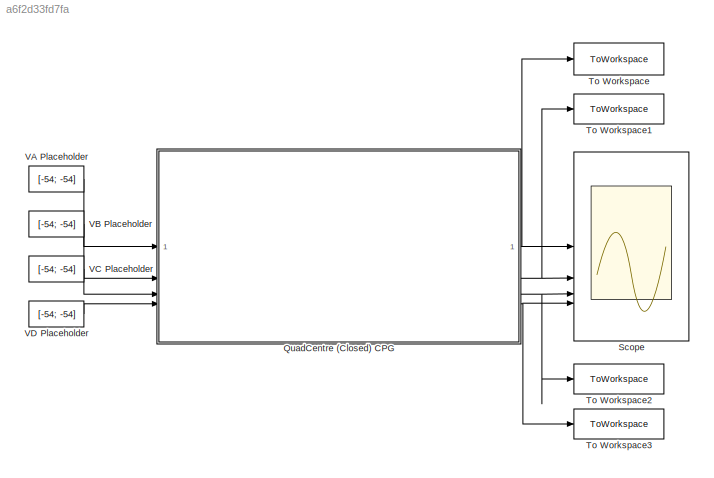
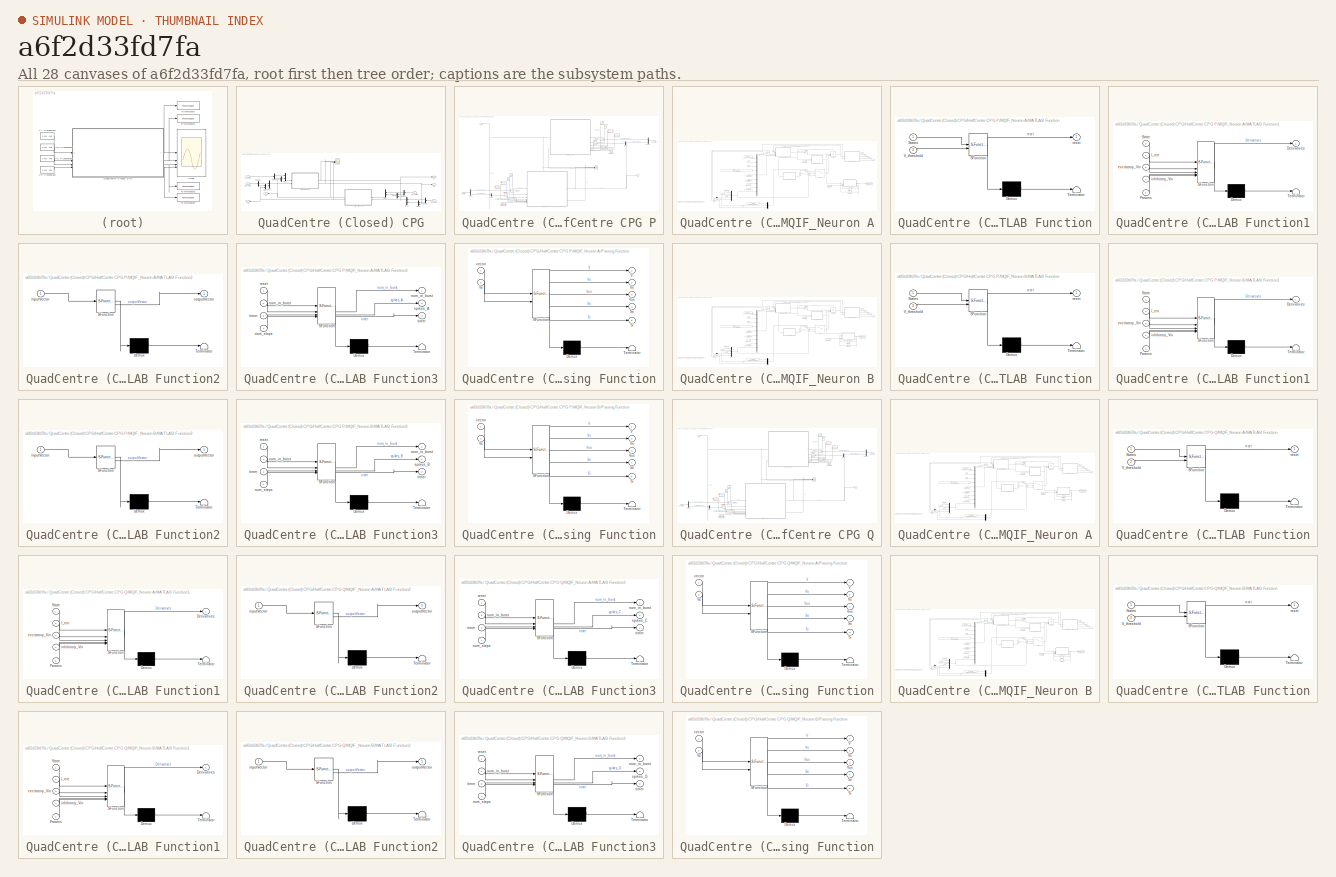
[diagram: thumbnail index - all 28 canvases of the model, root first then tree order]
MODEL slx_a6f2d33fd7fa
KIND model
CONFIG AbsTol = auto
CONFIG EnableMultiTasking = off
CONFIG FixedStep = 1e-3
CONFIG MaxStep = auto
CONFIG MinStep = auto
CONFIG RelTol = 1e-3
CONFIG SampleTimeConstraint = Unconstrained
CONFIG SolverName = ode4
CONFIG StartTime = 0.0
CONFIG StopTime = runtime
BLOCK [SubSystem] QuadCentre (Closed) CPG
  TreatAsAtomicUnit = on
BLOCK [Demux] QuadCentre (Closed) CPG/Demux
  Outputs = 2
BLOCK [Demux] QuadCentre (Closed) CPG/Demux1
  NameLocation = top
  Outputs = 2
BLOCK [Demux] QuadCentre (Closed) CPG/Demux2
  Outputs = 2
BLOCK [Demux] QuadCentre (Closed) CPG/Demux3
  NameLocation = top
  Outputs = 2
BLOCK [SubSystem] QuadCentre (Closed) CPG/HalfCentre CPG P
  TreatAsAtomicUnit = on
BLOCK [Demux] QuadCentre (Closed) CPG/HalfCentre CPG P/Demux
  Outputs = 2
BLOCK [Demux] QuadCentre (Closed) CPG/HalfCentre CPG P/Demux1
  NameLocation = top
  Outputs = 2
BLOCK [Constant] QuadCentre (Closed) CPG/HalfCentre CPG P/Excitatory Gate Threshold
  Value = GB_excitatory
BLOCK [Constant] QuadCentre (Closed) CPG/HalfCentre CPG P/Excitatory Gate Threshold1
  NameLocation = top
  Value = GB_excitatory
BLOCK [Constant] QuadCentre (Closed) CPG/HalfCentre CPG P/Gate BIas B
  NameLocation = top
  Value = GB_B
BLOCK [Constant] QuadCentre (Closed) CPG/HalfCentre CPG P/Inhibitory Gate A Threshold
  Value = GB_A
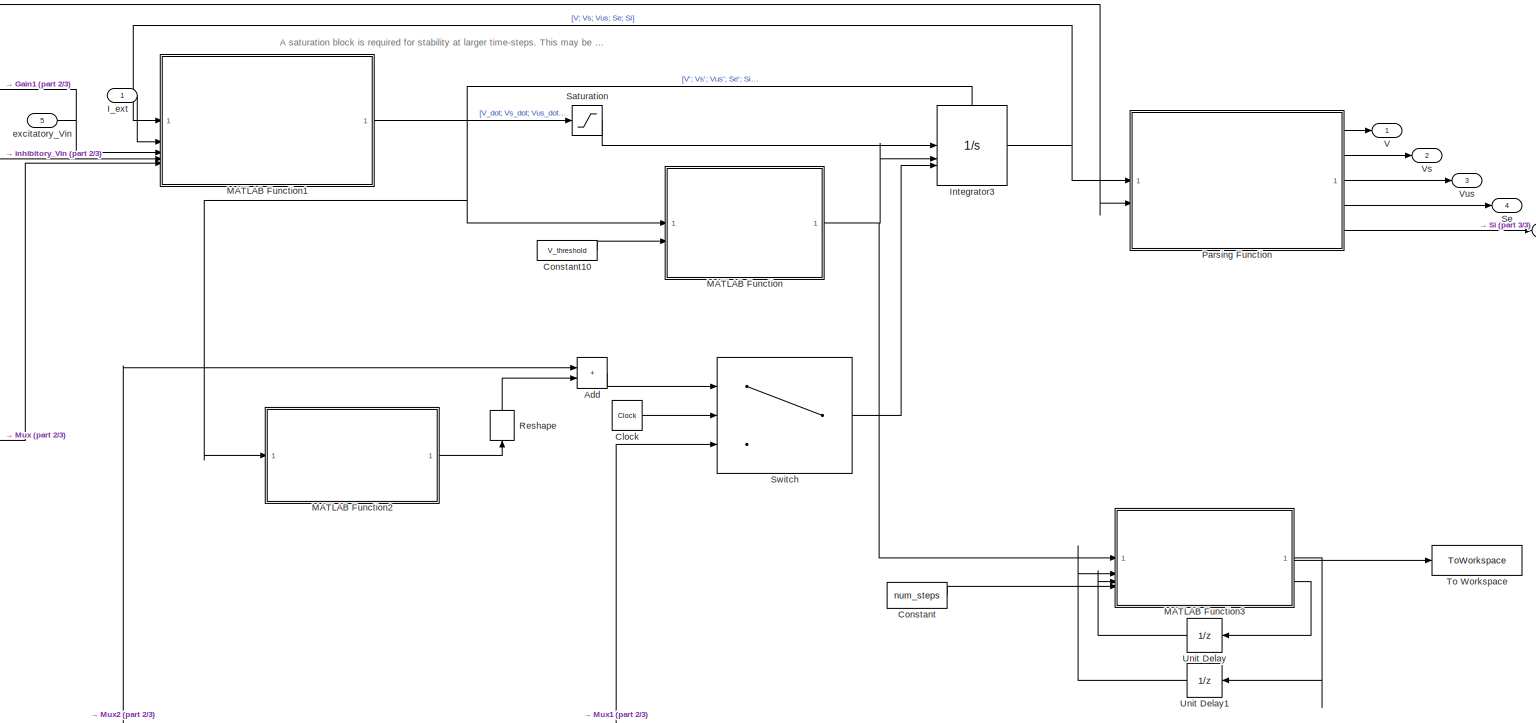
[diagram: QuadCentre (Closed) CPG/HalfCentre CPG P/MQIF_Neuron A - part 1/3, right side, full height]
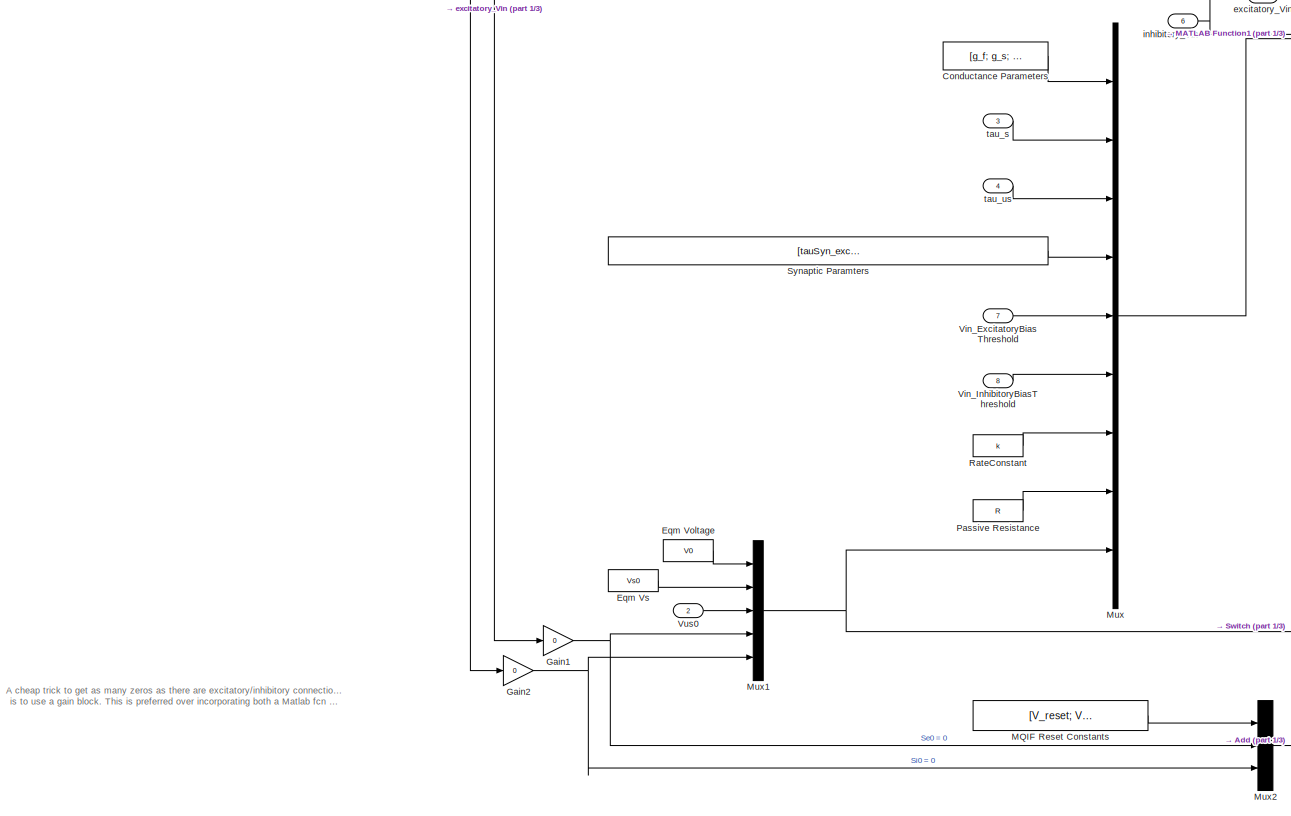
[diagram: QuadCentre (Closed) CPG/HalfCentre CPG P/MQIF_Neuron A - part 2/3, left side, full height]
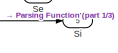
[diagram: QuadCentre (Closed) CPG/HalfCentre CPG P/MQIF_Neuron A - part 3/3, top right region]
BLOCK [SubSystem] QuadCentre (Closed) CPG/HalfCentre CPG P/MQIF_Neuron A
  TreatAsAtomicUnit = on
BLOCK [Sum] QuadCentre (Closed) CPG/HalfCentre CPG P/MQIF_Neuron A/Add
  IconShape = rectangular
BLOCK [Clock] QuadCentre (Closed) CPG/HalfCentre CPG P/MQIF_Neuron A/Clock
BLOCK [Constant] QuadCentre (Closed) CPG/HalfCentre CPG P/MQIF_Neuron A/Conductance Parameters
  Value = [g_f; g_s; g_us; C]
BLOCK [Constant] QuadCentre (Closed) CPG/HalfCentre CPG P/MQIF_Neuron A/Constant
  Value = num_steps
BLOCK [Constant] QuadCentre (Closed) CPG/HalfCentre CPG P/MQIF_Neuron A/Constant10
  Value = V_threshold
BLOCK [Constant] QuadCentre (Closed) CPG/HalfCentre CPG P/MQIF_Neuron A/Eqm Voltage
  Value = V0
BLOCK [Constant] QuadCentre (Closed) CPG/HalfCentre CPG P/MQIF_Neuron A/Eqm Vs
  Value = Vs0
BLOCK [Gain] QuadCentre (Closed) CPG/HalfCentre CPG P/MQIF_Neuron A/Gain1
  Gain = 0
BLOCK [Gain] QuadCentre (Closed) CPG/HalfCentre CPG P/MQIF_Neuron A/Gain2
  Gain = 0
BLOCK [Inport] QuadCentre (Closed) CPG/HalfCentre CPG P/MQIF_Neuron A/I_ext
BLOCK [Integrator] QuadCentre (Closed) CPG/HalfCentre CPG P/MQIF_Neuron A/Integrator3
  ExternalReset = rising
  InitialCondition = [V0 Vs0 Vus0]
  InitialConditionSource = external
  ShowStatePort = on
BLOCK [SubSystem] QuadCentre (Closed) CPG/HalfCentre CPG P/MQIF_Neuron A/MATLAB Function
  ErrorFcn = Stateflow.Translate.translate
  LibrarySourceBlock = simulink/User-Defined\nFunctions/MATLAB Function
  PermitHierarchicalResolution = ExplicitOnly
  SFBlockType = MATLAB Function
  TreatAsAtomicUnit = on
BLOCK [Demux] QuadCentre (Closed) CPG/HalfCentre CPG P/MQIF_Neuron A/MATLAB Function/ Demux 
  Outputs = 1
BLOCK [S-Function] QuadCentre (Closed) CPG/HalfCentre CPG P/MQIF_Neuron A/MATLAB Function/ SFunction 
  EnableBusSupport = on
  FunctionName = sf_sfun
  PortCounts = [2 2]
  SFcnIsStateOwnerBlock = off
  SFunctionDeploymentMode = off
  Tag = Stateflow S-Function 17
BLOCK [Terminator] QuadCentre (Closed) CPG/HalfCentre CPG P/MQIF_Neuron A/MATLAB Function/ Terminator 
BLOCK [Inport] QuadCentre (Closed) CPG/HalfCentre CPG P/MQIF_Neuron A/MATLAB Function/States
BLOCK [Inport] QuadCentre (Closed) CPG/HalfCentre CPG P/MQIF_Neuron A/MATLAB Function/V_threshold
  Port = 2
BLOCK [Outport] QuadCentre (Closed) CPG/HalfCentre CPG P/MQIF_Neuron A/MATLAB Function/reset
BLOCK [SubSystem] QuadCentre (Closed) CPG/HalfCentre CPG P/MQIF_Neuron A/MATLAB Function1
  ErrorFcn = Stateflow.Translate.translate
  LibrarySourceBlock = simulink/User-Defined\nFunctions/MATLAB Function
  PermitHierarchicalResolution = ExplicitOnly
  SFBlockType = MATLAB Function
  TreatAsAtomicUnit = on
BLOCK [Demux] QuadCentre (Closed) CPG/HalfCentre CPG P/MQIF_Neuron A/MATLAB Function1/ Demux 
  Outputs = 1
BLOCK [S-Function] QuadCentre (Closed) CPG/HalfCentre CPG P/MQIF_Neuron A/MATLAB Function1/ SFunction 
  EnableBusSupport = on
  FunctionName = sf_sfun
  PortCounts = [5 2]
  SFcnIsStateOwnerBlock = off
  SFunctionDeploymentMode = off
  Tag = Stateflow S-Function 18
BLOCK [Terminator] QuadCentre (Closed) CPG/HalfCentre CPG P/MQIF_Neuron A/MATLAB Function1/ Terminator 
BLOCK [Outport] QuadCentre (Closed) CPG/HalfCentre CPG P/MQIF_Neuron A/MATLAB Function1/Derivatives
BLOCK [Inport] QuadCentre (Closed) CPG/HalfCentre CPG P/MQIF_Neuron A/MATLAB Function1/I_ext
  Port = 2
BLOCK [Inport] QuadCentre (Closed) CPG/HalfCentre CPG P/MQIF_Neuron A/MATLAB Function1/Params
  Port = 5
BLOCK [Inport] QuadCentre (Closed) CPG/HalfCentre CPG P/MQIF_Neuron A/MATLAB Function1/State
BLOCK [Inport] QuadCentre (Closed) CPG/HalfCentre CPG P/MQIF_Neuron A/MATLAB Function1/excitatory_Vin
  Port = 3
BLOCK [Inport] QuadCentre (Closed) CPG/HalfCentre CPG P/MQIF_Neuron A/MATLAB Function1/inhibitory_Vin
  Port = 4
BLOCK [SubSystem] QuadCentre (Closed) CPG/HalfCentre CPG P/MQIF_Neuron A/MATLAB Function2
  ErrorFcn = Stateflow.Translate.translate
  LibrarySourceBlock = simulink/User-Defined\nFunctions/MATLAB Function
  PermitHierarchicalResolution = ExplicitOnly
  SFBlockType = MATLAB Function
  TreatAsAtomicUnit = on
BLOCK [Demux] QuadCentre (Closed) CPG/HalfCentre CPG P/MQIF_Neuron A/MATLAB Function2/ Demux 
  Outputs = 1
BLOCK [S-Function] QuadCentre (Closed) CPG/HalfCentre CPG P/MQIF_Neuron A/MATLAB Function2/ SFunction 
  EnableBusSupport = on
  FunctionName = sf_sfun
  PortCounts = [1 2]
  SFcnIsStateOwnerBlock = off
  SFunctionDeploymentMode = off
  Tag = Stateflow S-Function 19
BLOCK [Terminator] QuadCentre (Closed) CPG/HalfCentre CPG P/MQIF_Neuron A/MATLAB Function2/ Terminator 
BLOCK [Inport] QuadCentre (Closed) CPG/HalfCentre CPG P/MQIF_Neuron A/MATLAB Function2/inputVector
BLOCK [Outport] QuadCentre (Closed) CPG/HalfCentre CPG P/MQIF_Neuron A/MATLAB Function2/outputVector
BLOCK [SubSystem] QuadCentre (Closed) CPG/HalfCentre CPG P/MQIF_Neuron A/MATLAB Function3
  ErrorFcn = Stateflow.Translate.translate
  LibrarySourceBlock = simulink/User-Defined\nFunctions/MATLAB Function
  PermitHierarchicalResolution = ExplicitOnly
  SFBlockType = MATLAB Function
  TreatAsAtomicUnit = on
BLOCK [Demux] QuadCentre (Closed) CPG/HalfCentre CPG P/MQIF_Neuron A/MATLAB Function3/ Demux 
  Outputs = 1
BLOCK [S-Function] QuadCentre (Closed) CPG/HalfCentre CPG P/MQIF_Neuron A/MATLAB Function3/ SFunction 
  EnableBusSupport = on
  FunctionName = sf_sfun
  PortCounts = [4 4]
  SFcnIsStateOwnerBlock = off
  SFunctionDeploymentMode = off
  Tag = Stateflow S-Function 13
BLOCK [Terminator] QuadCentre (Closed) CPG/HalfCentre CPG P/MQIF_Neuron A/MATLAB Function3/ Terminator 
BLOCK [Outport] QuadCentre (Closed) CPG/HalfCentre CPG P/MQIF_Neuron A/MATLAB Function3/num_in_burst
BLOCK [Inport] QuadCentre (Closed) CPG/HalfCentre CPG P/MQIF_Neuron A/MATLAB Function3/num_in_burst 
  Port = 2
BLOCK [Inport] QuadCentre (Closed) CPG/HalfCentre CPG P/MQIF_Neuron A/MATLAB Function3/num_steps
  Port = 4
BLOCK [Inport] QuadCentre (Closed) CPG/HalfCentre CPG P/MQIF_Neuron A/MATLAB Function3/reset
BLOCK [Outport] QuadCentre (Closed) CPG/HalfCentre CPG P/MQIF_Neuron A/MATLAB Function3/spikes_A
  Port = 2
BLOCK [Outport] QuadCentre (Closed) CPG/HalfCentre CPG P/MQIF_Neuron A/MATLAB Function3/timer
  Port = 3
BLOCK [Inport] QuadCentre (Closed) CPG/HalfCentre CPG P/MQIF_Neuron A/MATLAB Function3/timer 
  Port = 3
BLOCK [Constant] QuadCentre (Closed) CPG/HalfCentre CPG P/MQIF_Neuron A/MQIF Reset Constants
  Value = [V_reset; Vs_reset; delta_Vus]
BLOCK [Mux] QuadCentre (Closed) CPG/HalfCentre CPG P/MQIF_Neuron A/Mux
  DisplayOption = bar
  Inputs = 9
BLOCK [Mux] QuadCentre (Closed) CPG/HalfCentre CPG P/MQIF_Neuron A/Mux1
  DisplayOption = bar
  Inputs = 5
BLOCK [Mux] QuadCentre (Closed) CPG/HalfCentre CPG P/MQIF_Neuron A/Mux2
  DisplayOption = bar
  Inputs = 3
BLOCK [SubSystem] QuadCentre (Closed) CPG/HalfCentre CPG P/MQIF_Neuron A/Parsing Function
  ErrorFcn = Stateflow.Translate.translate
  LibrarySourceBlock = simulink/User-Defined\nFunctions/MATLAB Function
  PermitHierarchicalResolution = ExplicitOnly
  SFBlockType = MATLAB Function
  TreatAsAtomicUnit = on
BLOCK [Demux] QuadCentre (Closed) CPG/HalfCentre CPG P/MQIF_Neuron A/Parsing Function/ Demux 
  Outputs = 1
BLOCK [S-Function] QuadCentre (Closed) CPG/HalfCentre CPG P/MQIF_Neuron A/Parsing Function/ SFunction 
  EnableBusSupport = on
  FunctionName = sf_sfun
  PortCounts = [2 6]
  SFcnIsStateOwnerBlock = off
  SFunctionDeploymentMode = off
  Tag = Stateflow S-Function 20
BLOCK [Terminator] QuadCentre (Closed) CPG/HalfCentre CPG P/MQIF_Neuron A/Parsing Function/ Terminator 
BLOCK [Outport] QuadCentre (Closed) CPG/HalfCentre CPG P/MQIF_Neuron A/Parsing Function/Se
  Port = 4
BLOCK [Outport] QuadCentre (Closed) CPG/HalfCentre CPG P/MQIF_Neuron A/Parsing Function/Si
  Port = 5
BLOCK [Outport] QuadCentre (Closed) CPG/HalfCentre CPG P/MQIF_Neuron A/Parsing Function/V
BLOCK [Inport] QuadCentre (Closed) CPG/HalfCentre CPG P/MQIF_Neuron A/Parsing Function/Ve
  Port = 2
BLOCK [Outport] QuadCentre (Closed) CPG/HalfCentre CPG P/MQIF_Neuron A/Parsing Function/Vs
  Port = 2
BLOCK [Outport] QuadCentre (Closed) CPG/HalfCentre CPG P/MQIF_Neuron A/Parsing Function/Vus
  Port = 3
BLOCK [Inport] QuadCentre (Closed) CPG/HalfCentre CPG P/MQIF_Neuron A/Parsing Function/vector
BLOCK [Constant] QuadCentre (Closed) CPG/HalfCentre CPG P/MQIF_Neuron A/Passive Resistance
  Value = R
BLOCK [Constant] QuadCentre (Closed) CPG/HalfCentre CPG P/MQIF_Neuron A/RateConstant
  Value = k
BLOCK [Reshape] QuadCentre (Closed) CPG/HalfCentre CPG P/MQIF_Neuron A/Reshape
  NameLocation = right
BLOCK [Saturate] QuadCentre (Closed) CPG/HalfCentre CPG P/MQIF_Neuron A/Saturation
  LinearizeAsGain = off
  LowerLimit = -1e4
  UpperLimit = 1e4
  ZeroCross = off
BLOCK [Outport] QuadCentre (Closed) CPG/HalfCentre CPG P/MQIF_Neuron A/Se
  Port = 4
BLOCK [Outport] QuadCentre (Closed) CPG/HalfCentre CPG P/MQIF_Neuron A/Si
  Port = 5
BLOCK [Switch] QuadCentre (Closed) CPG/HalfCentre CPG P/MQIF_Neuron A/Switch
  Criteria = u2 > Threshold
  InputSameDT = off
  SaturateOnIntegerOverflow = off
  Threshold = 1e-3
BLOCK [Constant] QuadCentre (Closed) CPG/HalfCentre CPG P/MQIF_Neuron A/Synaptic Paramters
  Value = [tauSyn_excitatory; tauSyn_inhibitory; Ve_syn; Vi_syn; g_syn_excitatory; g_syn_inhibitory]
BLOCK [ToWorkspace] QuadCentre (Closed) CPG/HalfCentre CPG P/MQIF_Neuron A/To Workspace
  FixptAsFi = on
  MaxDataPoints = inf
  SampleTime = -1
  SaveFormat = Timeseries
  VariableName = spikes_A
BLOCK [UnitDelay] QuadCentre (Closed) CPG/HalfCentre CPG P/MQIF_Neuron A/Unit Delay
  HasFrameUpgradeWarning = on
  NameLocation = top
  SampleTime = -1
BLOCK [UnitDelay] QuadCentre (Closed) CPG/HalfCentre CPG P/MQIF_Neuron A/Unit Delay1
  HasFrameUpgradeWarning = on
  NameLocation = top
  SampleTime = -1
BLOCK [Outport] QuadCentre (Closed) CPG/HalfCentre CPG P/MQIF_Neuron A/V
BLOCK [Inport] QuadCentre (Closed) CPG/HalfCentre CPG P/MQIF_Neuron A/Vin_ExcitatoryBiasThreshold
  Port = 7
BLOCK [Inport] QuadCentre (Closed) CPG/HalfCentre CPG P/MQIF_Neuron A/Vin_InhibitoryBiasThreshold
  Port = 8
BLOCK [Outport] QuadCentre (Closed) CPG/HalfCentre CPG P/MQIF_Neuron A/Vs
  Port = 2
BLOCK [Outport] QuadCentre (Closed) CPG/HalfCentre CPG P/MQIF_Neuron A/Vus
  Port = 3
BLOCK [Inport] QuadCentre (Closed) CPG/HalfCentre CPG P/MQIF_Neuron A/Vus0
  Port = 2
BLOCK [Inport] QuadCentre (Closed) CPG/HalfCentre CPG P/MQIF_Neuron A/excitatory_Vin
  Port = 5
BLOCK [Inport] QuadCentre (Closed) CPG/HalfCentre CPG P/MQIF_Neuron A/inhibitory_Vin
  Port = 6
BLOCK [Inport] QuadCentre (Closed) CPG/HalfCentre CPG P/MQIF_Neuron A/tau_s
  Port = 3
BLOCK [Inport] QuadCentre (Closed) CPG/HalfCentre CPG P/MQIF_Neuron A/tau_us
  Port = 4
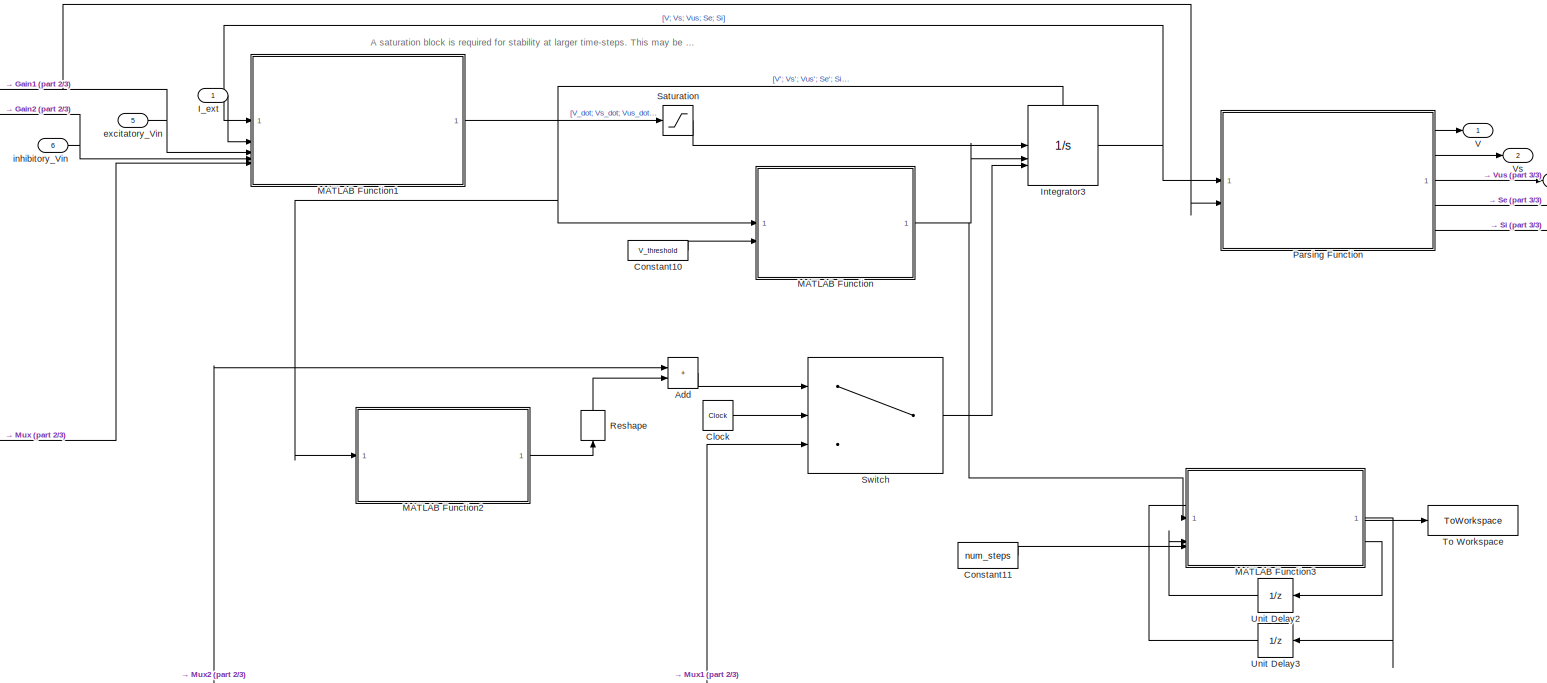
[diagram: QuadCentre (Closed) CPG/HalfCentre CPG P/MQIF_Neuron B - part 1/3, middle right region]
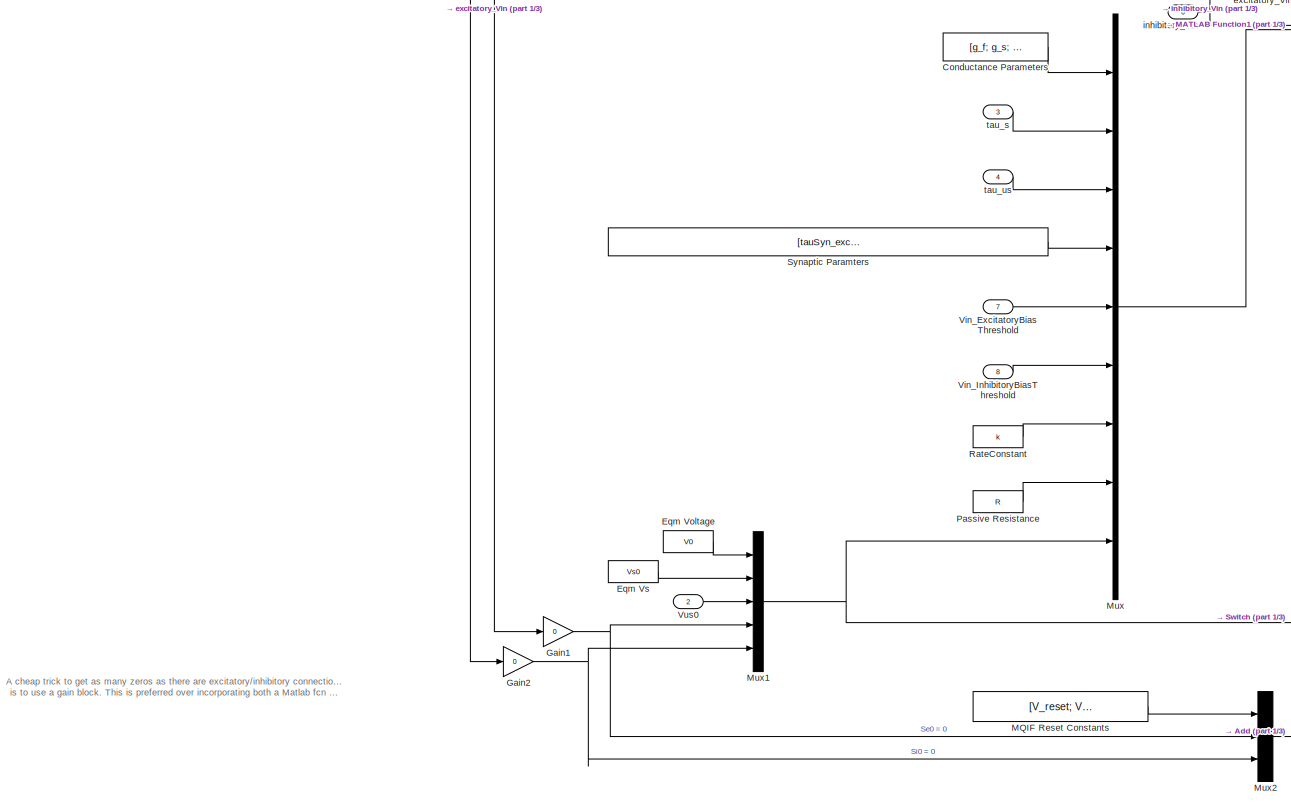
[diagram: QuadCentre (Closed) CPG/HalfCentre CPG P/MQIF_Neuron B - part 2/3, left side, full height]
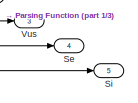
[diagram: QuadCentre (Closed) CPG/HalfCentre CPG P/MQIF_Neuron B - part 3/3, top right region]
BLOCK [SubSystem] QuadCentre (Closed) CPG/HalfCentre CPG P/MQIF_Neuron B
  NameLocation = top
  TreatAsAtomicUnit = on
BLOCK [Sum] QuadCentre (Closed) CPG/HalfCentre CPG P/MQIF_Neuron B/Add
  IconShape = rectangular
BLOCK [Clock] QuadCentre (Closed) CPG/HalfCentre CPG P/MQIF_Neuron B/Clock
BLOCK [Constant] QuadCentre (Closed) CPG/HalfCentre CPG P/MQIF_Neuron B/Conductance Parameters
  Value = [g_f; g_s; g_us; C]
BLOCK [Constant] QuadCentre (Closed) CPG/HalfCentre CPG P/MQIF_Neuron B/Constant10
  Value = V_threshold
BLOCK [Constant] QuadCentre (Closed) CPG/HalfCentre CPG P/MQIF_Neuron B/Constant11
  Value = num_steps
BLOCK [Constant] QuadCentre (Closed) CPG/HalfCentre CPG P/MQIF_Neuron B/Eqm Voltage
  Value = V0
BLOCK [Constant] QuadCentre (Closed) CPG/HalfCentre CPG P/MQIF_Neuron B/Eqm Vs
  Value = Vs0
BLOCK [Gain] QuadCentre (Closed) CPG/HalfCentre CPG P/MQIF_Neuron B/Gain1
  Gain = 0
BLOCK [Gain] QuadCentre (Closed) CPG/HalfCentre CPG P/MQIF_Neuron B/Gain2
  Gain = 0
BLOCK [Inport] QuadCentre (Closed) CPG/HalfCentre CPG P/MQIF_Neuron B/I_ext
BLOCK [Integrator] QuadCentre (Closed) CPG/HalfCentre CPG P/MQIF_Neuron B/Integrator3
  ExternalReset = rising
  InitialCondition = [V0 Vs0 Vus0]
  InitialConditionSource = external
  ShowStatePort = on
BLOCK [SubSystem] QuadCentre (Closed) CPG/HalfCentre CPG P/MQIF_Neuron B/MATLAB Function
  ErrorFcn = Stateflow.Translate.translate
  LibrarySourceBlock = simulink/User-Defined\nFunctions/MATLAB Function
  PermitHierarchicalResolution = ExplicitOnly
  SFBlockType = MATLAB Function
  TreatAsAtomicUnit = on
BLOCK [Demux] QuadCentre (Closed) CPG/HalfCentre CPG P/MQIF_Neuron B/MATLAB Function/ Demux 
  Outputs = 1
BLOCK [S-Function] QuadCentre (Closed) CPG/HalfCentre CPG P/MQIF_Neuron B/MATLAB Function/ SFunction 
  EnableBusSupport = on
  FunctionName = sf_sfun
  PortCounts = [2 2]
  SFcnIsStateOwnerBlock = off
  SFunctionDeploymentMode = off
  Tag = Stateflow S-Function 5
BLOCK [Terminator] QuadCentre (Closed) CPG/HalfCentre CPG P/MQIF_Neuron B/MATLAB Function/ Terminator 
BLOCK [Inport] QuadCentre (Closed) CPG/HalfCentre CPG P/MQIF_Neuron B/MATLAB Function/States
BLOCK [Inport] QuadCentre (Closed) CPG/HalfCentre CPG P/MQIF_Neuron B/MATLAB Function/V_threshold
  Port = 2
BLOCK [Outport] QuadCentre (Closed) CPG/HalfCentre CPG P/MQIF_Neuron B/MATLAB Function/reset
BLOCK [SubSystem] QuadCentre (Closed) CPG/HalfCentre CPG P/MQIF_Neuron B/MATLAB Function1
  ErrorFcn = Stateflow.Translate.translate
  LibrarySourceBlock = simulink/User-Defined\nFunctions/MATLAB Function
  PermitHierarchicalResolution = ExplicitOnly
  SFBlockType = MATLAB Function
  TreatAsAtomicUnit = on
BLOCK [Demux] QuadCentre (Closed) CPG/HalfCentre CPG P/MQIF_Neuron B/MATLAB Function1/ Demux 
  Outputs = 1
BLOCK [S-Function] QuadCentre (Closed) CPG/HalfCentre CPG P/MQIF_Neuron B/MATLAB Function1/ SFunction 
  EnableBusSupport = on
  FunctionName = sf_sfun
  PortCounts = [5 2]
  SFcnIsStateOwnerBlock = off
  SFunctionDeploymentMode = off
  Tag = Stateflow S-Function 6
BLOCK [Terminator] QuadCentre (Closed) CPG/HalfCentre CPG P/MQIF_Neuron B/MATLAB Function1/ Terminator 
BLOCK [Outport] QuadCentre (Closed) CPG/HalfCentre CPG P/MQIF_Neuron B/MATLAB Function1/Derivatives
BLOCK [Inport] QuadCentre (Closed) CPG/HalfCentre CPG P/MQIF_Neuron B/MATLAB Function1/I_ext
  Port = 2
BLOCK [Inport] QuadCentre (Closed) CPG/HalfCentre CPG P/MQIF_Neuron B/MATLAB Function1/Params
  Port = 5
BLOCK [Inport] QuadCentre (Closed) CPG/HalfCentre CPG P/MQIF_Neuron B/MATLAB Function1/State
BLOCK [Inport] QuadCentre (Closed) CPG/HalfCentre CPG P/MQIF_Neuron B/MATLAB Function1/excitatory_Vin
  Port = 3
BLOCK [Inport] QuadCentre (Closed) CPG/HalfCentre CPG P/MQIF_Neuron B/MATLAB Function1/inhibitory_Vin
  Port = 4
BLOCK [SubSystem] QuadCentre (Closed) CPG/HalfCentre CPG P/MQIF_Neuron B/MATLAB Function2
  ErrorFcn = Stateflow.Translate.translate
  LibrarySourceBlock = simulink/User-Defined\nFunctions/MATLAB Function
  PermitHierarchicalResolution = ExplicitOnly
  SFBlockType = MATLAB Function
  TreatAsAtomicUnit = on
BLOCK [Demux] QuadCentre (Closed) CPG/HalfCentre CPG P/MQIF_Neuron B/MATLAB Function2/ Demux 
  Outputs = 1
BLOCK [S-Function] QuadCentre (Closed) CPG/HalfCentre CPG P/MQIF_Neuron B/MATLAB Function2/ SFunction 
  EnableBusSupport = on
  FunctionName = sf_sfun
  PortCounts = [1 2]
  SFcnIsStateOwnerBlock = off
  SFunctionDeploymentMode = off
  Tag = Stateflow S-Function 7
BLOCK [Terminator] QuadCentre (Closed) CPG/HalfCentre CPG P/MQIF_Neuron B/MATLAB Function2/ Terminator 
BLOCK [Inport] QuadCentre (Closed) CPG/HalfCentre CPG P/MQIF_Neuron B/MATLAB Function2/inputVector
BLOCK [Outport] QuadCentre (Closed) CPG/HalfCentre CPG P/MQIF_Neuron B/MATLAB Function2/outputVector
BLOCK [SubSystem] QuadCentre (Closed) CPG/HalfCentre CPG P/MQIF_Neuron B/MATLAB Function3
  ErrorFcn = Stateflow.Translate.translate
  LibrarySourceBlock = simulink/User-Defined\nFunctions/MATLAB Function
  PermitHierarchicalResolution = ExplicitOnly
  SFBlockType = MATLAB Function
  TreatAsAtomicUnit = on
BLOCK [Demux] QuadCentre (Closed) CPG/HalfCentre CPG P/MQIF_Neuron B/MATLAB Function3/ Demux 
  Outputs = 1
BLOCK [S-Function] QuadCentre (Closed) CPG/HalfCentre CPG P/MQIF_Neuron B/MATLAB Function3/ SFunction 
  EnableBusSupport = on
  FunctionName = sf_sfun
  PortCounts = [4 4]
  SFcnIsStateOwnerBlock = off
  SFunctionDeploymentMode = off
  Tag = Stateflow S-Function 14
BLOCK [Terminator] QuadCentre (Closed) CPG/HalfCentre CPG P/MQIF_Neuron B/MATLAB Function3/ Terminator 
BLOCK [Outport] QuadCentre (Closed) CPG/HalfCentre CPG P/MQIF_Neuron B/MATLAB Function3/num_in_burst
BLOCK [Inport] QuadCentre (Closed) CPG/HalfCentre CPG P/MQIF_Neuron B/MATLAB Function3/num_in_burst 
  Port = 2
BLOCK [Inport] QuadCentre (Closed) CPG/HalfCentre CPG P/MQIF_Neuron B/MATLAB Function3/num_steps
  Port = 4
BLOCK [Inport] QuadCentre (Closed) CPG/HalfCentre CPG P/MQIF_Neuron B/MATLAB Function3/reset
BLOCK [Outport] QuadCentre (Closed) CPG/HalfCentre CPG P/MQIF_Neuron B/MATLAB Function3/spikes_B
  Port = 2
BLOCK [Outport] QuadCentre (Closed) CPG/HalfCentre CPG P/MQIF_Neuron B/MATLAB Function3/timer
  Port = 3
BLOCK [Inport] QuadCentre (Closed) CPG/HalfCentre CPG P/MQIF_Neuron B/MATLAB Function3/timer 
  Port = 3
BLOCK [Constant] QuadCentre (Closed) CPG/HalfCentre CPG P/MQIF_Neuron B/MQIF Reset Constants
  Value = [V_reset; Vs_reset; delta_Vus]
BLOCK [Mux] QuadCentre (Closed) CPG/HalfCentre CPG P/MQIF_Neuron B/Mux
  DisplayOption = bar
  Inputs = 9
BLOCK [Mux] QuadCentre (Closed) CPG/HalfCentre CPG P/MQIF_Neuron B/Mux1
  DisplayOption = bar
  Inputs = 5
BLOCK [Mux] QuadCentre (Closed) CPG/HalfCentre CPG P/MQIF_Neuron B/Mux2
  DisplayOption = bar
  Inputs = 3
BLOCK [SubSystem] QuadCentre (Closed) CPG/HalfCentre CPG P/MQIF_Neuron B/Parsing Function
  ErrorFcn = Stateflow.Translate.translate
  LibrarySourceBlock = simulink/User-Defined\nFunctions/MATLAB Function
  PermitHierarchicalResolution = ExplicitOnly
  SFBlockType = MATLAB Function
  TreatAsAtomicUnit = on
BLOCK [Demux] QuadCentre (Closed) CPG/HalfCentre CPG P/MQIF_Neuron B/Parsing Function/ Demux 
  Outputs = 1
BLOCK [S-Function] QuadCentre (Closed) CPG/HalfCentre CPG P/MQIF_Neuron B/Parsing Function/ SFunction 
  EnableBusSupport = on
  FunctionName = sf_sfun
  PortCounts = [2 6]
  SFcnIsStateOwnerBlock = off
  SFunctionDeploymentMode = off
  Tag = Stateflow S-Function 8
BLOCK [Terminator] QuadCentre (Closed) CPG/HalfCentre CPG P/MQIF_Neuron B/Parsing Function/ Terminator 
BLOCK [Outport] QuadCentre (Closed) CPG/HalfCentre CPG P/MQIF_Neuron B/Parsing Function/Se
  Port = 4
BLOCK [Outport] QuadCentre (Closed) CPG/HalfCentre CPG P/MQIF_Neuron B/Parsing Function/Si
  Port = 5
BLOCK [Outport] QuadCentre (Closed) CPG/HalfCentre CPG P/MQIF_Neuron B/Parsing Function/V
BLOCK [Inport] QuadCentre (Closed) CPG/HalfCentre CPG P/MQIF_Neuron B/Parsing Function/Ve
  Port = 2
BLOCK [Outport] QuadCentre (Closed) CPG/HalfCentre CPG P/MQIF_Neuron B/Parsing Function/Vs
  Port = 2
BLOCK [Outport] QuadCentre (Closed) CPG/HalfCentre CPG P/MQIF_Neuron B/Parsing Function/Vus
  Port = 3
BLOCK [Inport] QuadCentre (Closed) CPG/HalfCentre CPG P/MQIF_Neuron B/Parsing Function/vector
BLOCK [Constant] QuadCentre (Closed) CPG/HalfCentre CPG P/MQIF_Neuron B/Passive Resistance
  Value = R
BLOCK [Constant] QuadCentre (Closed) CPG/HalfCentre CPG P/MQIF_Neuron B/RateConstant
  Value = k
BLOCK [Reshape] QuadCentre (Closed) CPG/HalfCentre CPG P/MQIF_Neuron B/Reshape
  NameLocation = right
BLOCK [Saturate] QuadCentre (Closed) CPG/HalfCentre CPG P/MQIF_Neuron B/Saturation
  LinearizeAsGain = off
  LowerLimit = -1e4
  UpperLimit = 1e4
  ZeroCross = off
BLOCK [Outport] QuadCentre (Closed) CPG/HalfCentre CPG P/MQIF_Neuron B/Se
  Port = 4
BLOCK [Outport] QuadCentre (Closed) CPG/HalfCentre CPG P/MQIF_Neuron B/Si
  Port = 5
BLOCK [Switch] QuadCentre (Closed) CPG/HalfCentre CPG P/MQIF_Neuron B/Switch
  Criteria = u2 > Threshold
  InputSameDT = off
  SaturateOnIntegerOverflow = off
  Threshold = 1e-3
BLOCK [Constant] QuadCentre (Closed) CPG/HalfCentre CPG P/MQIF_Neuron B/Synaptic Paramters
  Value = [tauSyn_excitatory; tauSyn_inhibitory; Ve_syn; Vi_syn; g_syn_excitatory; g_syn_inhibitory]
BLOCK [ToWorkspace] QuadCentre (Closed) CPG/HalfCentre CPG P/MQIF_Neuron B/To Workspace
  FixptAsFi = on
  MaxDataPoints = inf
  SampleTime = -1
  SaveFormat = Timeseries
  VariableName = spikes_B
BLOCK [UnitDelay] QuadCentre (Closed) CPG/HalfCentre CPG P/MQIF_Neuron B/Unit Delay2
  HasFrameUpgradeWarning = on
  NameLocation = top
  SampleTime = -1
BLOCK [UnitDelay] QuadCentre (Closed) CPG/HalfCentre CPG P/MQIF_Neuron B/Unit Delay3
  HasFrameUpgradeWarning = on
  NameLocation = top
  SampleTime = -1
BLOCK [Outport] QuadCentre (Closed) CPG/HalfCentre CPG P/MQIF_Neuron B/V
BLOCK [Inport] QuadCentre (Closed) CPG/HalfCentre CPG P/MQIF_Neuron B/Vin_ExcitatoryBiasThreshold
  Port = 7
BLOCK [Inport] QuadCentre (Closed) CPG/HalfCentre CPG P/MQIF_Neuron B/Vin_InhibitoryBiasThreshold
  Port = 8
BLOCK [Outport] QuadCentre (Closed) CPG/HalfCentre CPG P/MQIF_Neuron B/Vs
  Port = 2
BLOCK [Outport] QuadCentre (Closed) CPG/HalfCentre CPG P/MQIF_Neuron B/Vus
  Port = 3
BLOCK [Inport] QuadCentre (Closed) CPG/HalfCentre CPG P/MQIF_Neuron B/Vus0
  Port = 2
BLOCK [Inport] QuadCentre (Closed) CPG/HalfCentre CPG P/MQIF_Neuron B/excitatory_Vin
  Port = 5
BLOCK [Inport] QuadCentre (Closed) CPG/HalfCentre CPG P/MQIF_Neuron B/inhibitory_Vin
  Port = 6
BLOCK [Inport] QuadCentre (Closed) CPG/HalfCentre CPG P/MQIF_Neuron B/tau_s
  Port = 3
BLOCK [Inport] QuadCentre (Closed) CPG/HalfCentre CPG P/MQIF_Neuron B/tau_us
  Port = 4
BLOCK [Mux] QuadCentre (Closed) CPG/HalfCentre CPG P/Mux
  DisplayOption = bar
  Inputs = 2
  NameLocation = top
BLOCK [Mux] QuadCentre (Closed) CPG/HalfCentre CPG P/Mux1
  DisplayOption = bar
  Inputs = 2
BLOCK [Scope] QuadCentre (Closed) CPG/HalfCentre CPG P/Scope
  Floating = off
  NumInputPorts = 4
  ScopeSpecificationString = Simulink.scopes.TimeScopeBlockCfg('CurrentConfiguration', extmgr.ConfigurationSet(extmgr.Configuration('Core','General UI',true),extmgr.Configuration('Core','Source UI',true),extmgr.Configuration('Sources','WiredSimulink',true,'DataLoggingVariableName','ScopeData1'),extmgr.Configuration('Visuals','Time Domain',true,'SerializedDisplays',{struct('MinYLimReal','-86.84465','MaxYLimReal','31.60184','YL...<+3449ch>
BLOCK [Step] QuadCentre (Closed) CPG/HalfCentre CPG P/Step
  After = 5
  NameLocation = top
  SampleTime = 0
BLOCK [Step] QuadCentre (Closed) CPG/HalfCentre CPG P/Step1
  After = 5
  SampleTime = 0
BLOCK [Constant] QuadCentre (Closed) CPG/HalfCentre CPG P/Tau_s_A
  Value = tau_s_A
BLOCK [Constant] QuadCentre (Closed) CPG/HalfCentre CPG P/Tau_s_B
  NameLocation = top
  Value = tau_s_B
BLOCK [Constant] QuadCentre (Closed) CPG/HalfCentre CPG P/Tau_us_A
  Value = tau_us_A
BLOCK [Constant] QuadCentre (Closed) CPG/HalfCentre CPG P/Tau_us_B
  NameLocation = top
  Value = tau_us_B
BLOCK [UnitDelay] QuadCentre (Closed) CPG/HalfCentre CPG P/Unit Delay
  HasFrameUpgradeWarning = on
  InitialCondition = [-54; -54]
  NameLocation = top
  SampleTime = -1
BLOCK [UnitDelay] QuadCentre (Closed) CPG/HalfCentre CPG P/Unit Delay1
  HasFrameUpgradeWarning = on
  InitialCondition = [-54; -54]
  SampleTime = -1
BLOCK [UnitDelay] QuadCentre (Closed) CPG/HalfCentre CPG P/Unit Delay2
  HasFrameUpgradeWarning = on
  InitialCondition = -54
  SampleTime = -1
BLOCK [UnitDelay] QuadCentre (Closed) CPG/HalfCentre CPG P/Unit Delay3
  HasFrameUpgradeWarning = on
  InitialCondition = -54
  NameLocation = top
  SampleTime = -1
BLOCK [Outport] QuadCentre (Closed) CPG/HalfCentre CPG P/VA
BLOCK [Inport] QuadCentre (Closed) CPG/HalfCentre CPG P/VA_ext [+; -]
BLOCK [Outport] QuadCentre (Closed) CPG/HalfCentre CPG P/VB
  NameLocation = top
  Port = 2
BLOCK [Inport] QuadCentre (Closed) CPG/HalfCentre CPG P/VB_ext [+; -]
  NameLocation = top
  Port = 2
BLOCK [Constant] QuadCentre (Closed) CPG/HalfCentre CPG P/Vus0_B
  NameLocation = top
  Value = -52
BLOCK [Constant] QuadCentre (Closed) CPG/HalfCentre CPG P/Vus1
  Value = -52
BLOCK [SubSystem] QuadCentre (Closed) CPG/HalfCentre CPG Q
  NameLocation = top
  TreatAsAtomicUnit = on
BLOCK [Demux] QuadCentre (Closed) CPG/HalfCentre CPG Q/Demux
  Outputs = 2
BLOCK [Demux] QuadCentre (Closed) CPG/HalfCentre CPG Q/Demux1
  NameLocation = top
  Outputs = 2
BLOCK [Constant] QuadCentre (Closed) CPG/HalfCentre CPG Q/Excitatory Gate Threshold
  Value = GB_excitatory
BLOCK [Constant] QuadCentre (Closed) CPG/HalfCentre CPG Q/Excitatory Gate Threshold1
  NameLocation = top
  Value = GB_excitatory
BLOCK [Constant] QuadCentre (Closed) CPG/HalfCentre CPG Q/Gate BIas B
  NameLocation = top
  Value = GB_B
BLOCK [Constant] QuadCentre (Closed) CPG/HalfCentre CPG Q/Inhibitory Gate A Threshold
  Value = GB_A
BLOCK [SubSystem] QuadCentre (Closed) CPG/HalfCentre CPG Q/MQIF_Neuron A
  TreatAsAtomicUnit = on
BLOCK [Sum] QuadCentre (Closed) CPG/HalfCentre CPG Q/MQIF_Neuron A/Add
  IconShape = rectangular
BLOCK [Clock] QuadCentre (Closed) CPG/HalfCentre CPG Q/MQIF_Neuron A/Clock
BLOCK [Constant] QuadCentre (Closed) CPG/HalfCentre CPG Q/MQIF_Neuron A/Conductance Parameters
  Value = [g_f; g_s; g_us; C]
BLOCK [Constant] QuadCentre (Closed) CPG/HalfCentre CPG Q/MQIF_Neuron A/Constant
  Value = num_steps
BLOCK [Constant] QuadCentre (Closed) CPG/HalfCentre CPG Q/MQIF_Neuron A/Constant10
  Value = V_threshold
BLOCK [Constant] QuadCentre (Closed) CPG/HalfCentre CPG Q/MQIF_Neuron A/Eqm Voltage
  Value = V0
BLOCK [Constant] QuadCentre (Closed) CPG/HalfCentre CPG Q/MQIF_Neuron A/Eqm Vs
  Value = Vs0
BLOCK [Gain] QuadCentre (Closed) CPG/HalfCentre CPG Q/MQIF_Neuron A/Gain1
  Gain = 0
BLOCK [Gain] QuadCentre (Closed) CPG/HalfCentre CPG Q/MQIF_Neuron A/Gain2
  Gain = 0
BLOCK [Inport] QuadCentre (Closed) CPG/HalfCentre CPG Q/MQIF_Neuron A/I_ext
BLOCK [Integrator] QuadCentre (Closed) CPG/HalfCentre CPG Q/MQIF_Neuron A/Integrator3
  ExternalReset = rising
  InitialCondition = [V0 Vs0 Vus0]
  InitialConditionSource = external
  ShowStatePort = on
BLOCK [SubSystem] QuadCentre (Closed) CPG/HalfCentre CPG Q/MQIF_Neuron A/MATLAB Function
  ErrorFcn = Stateflow.Translate.translate
  LibrarySourceBlock = simulink/User-Defined\nFunctions/MATLAB Function
  PermitHierarchicalResolution = ExplicitOnly
  SFBlockType = MATLAB Function
  TreatAsAtomicUnit = on
BLOCK [Demux] QuadCentre (Closed) CPG/HalfCentre CPG Q/MQIF_Neuron A/MATLAB Function/ Demux 
  Outputs = 1
BLOCK [S-Function] QuadCentre (Closed) CPG/HalfCentre CPG Q/MQIF_Neuron A/MATLAB Function/ SFunction 
  EnableBusSupport = on
  FunctionName = sf_sfun
  PortCounts = [2 2]
  SFcnIsStateOwnerBlock = off
  SFunctionDeploymentMode = off
  Tag = Stateflow S-Function 1
BLOCK [Terminator] QuadCentre (Closed) CPG/HalfCentre CPG Q/MQIF_Neuron A/MATLAB Function/ Terminator 
BLOCK [Inport] QuadCentre (Closed) CPG/HalfCentre CPG Q/MQIF_Neuron A/MATLAB Function/States
BLOCK [Inport] QuadCentre (Closed) CPG/HalfCentre CPG Q/MQIF_Neuron A/MATLAB Function/V_threshold
  Port = 2
BLOCK [Outport] QuadCentre (Closed) CPG/HalfCentre CPG Q/MQIF_Neuron A/MATLAB Function/reset
BLOCK [SubSystem] QuadCentre (Closed) CPG/HalfCentre CPG Q/MQIF_Neuron A/MATLAB Function1
  ErrorFcn = Stateflow.Translate.translate
  LibrarySourceBlock = simulink/User-Defined\nFunctions/MATLAB Function
  PermitHierarchicalResolution = ExplicitOnly
  SFBlockType = MATLAB Function
  TreatAsAtomicUnit = on
BLOCK [Demux] QuadCentre (Closed) CPG/HalfCentre CPG Q/MQIF_Neuron A/MATLAB Function1/ Demux 
  Outputs = 1
BLOCK [S-Function] QuadCentre (Closed) CPG/HalfCentre CPG Q/MQIF_Neuron A/MATLAB Function1/ SFunction 
  EnableBusSupport = on
  FunctionName = sf_sfun
  PortCounts = [5 2]
  SFcnIsStateOwnerBlock = off
  SFunctionDeploymentMode = off
  Tag = Stateflow S-Function 2
BLOCK [Terminator] QuadCentre (Closed) CPG/HalfCentre CPG Q/MQIF_Neuron A/MATLAB Function1/ Terminator 
BLOCK [Outport] QuadCentre (Closed) CPG/HalfCentre CPG Q/MQIF_Neuron A/MATLAB Function1/Derivatives
BLOCK [Inport] QuadCentre (Closed) CPG/HalfCentre CPG Q/MQIF_Neuron A/MATLAB Function1/I_ext
  Port = 2
BLOCK [Inport] QuadCentre (Closed) CPG/HalfCentre CPG Q/MQIF_Neuron A/MATLAB Function1/Params
  Port = 5
BLOCK [Inport] QuadCentre (Closed) CPG/HalfCentre CPG Q/MQIF_Neuron A/MATLAB Function1/State
BLOCK [Inport] QuadCentre (Closed) CPG/HalfCentre CPG Q/MQIF_Neuron A/MATLAB Function1/excitatory_Vin
  Port = 3
BLOCK [Inport] QuadCentre (Closed) CPG/HalfCentre CPG Q/MQIF_Neuron A/MATLAB Function1/inhibitory_Vin
  Port = 4
BLOCK [SubSystem] QuadCentre (Closed) CPG/HalfCentre CPG Q/MQIF_Neuron A/MATLAB Function2
  ErrorFcn = Stateflow.Translate.translate
  LibrarySourceBlock = simulink/User-Defined\nFunctions/MATLAB Function
  PermitHierarchicalResolution = ExplicitOnly
  SFBlockType = MATLAB Function
  TreatAsAtomicUnit = on
BLOCK [Demux] QuadCentre (Closed) CPG/HalfCentre CPG Q/MQIF_Neuron A/MATLAB Function2/ Demux 
  Outputs = 1
BLOCK [S-Function] QuadCentre (Closed) CPG/HalfCentre CPG Q/MQIF_Neuron A/MATLAB Function2/ SFunction 
  EnableBusSupport = on
  FunctionName = sf_sfun
  PortCounts = [1 2]
  SFcnIsStateOwnerBlock = off
  SFunctionDeploymentMode = off
  Tag = Stateflow S-Function 3
BLOCK [Terminator] QuadCentre (Closed) CPG/HalfCentre CPG Q/MQIF_Neuron A/MATLAB Function2/ Terminator 
BLOCK [Inport] QuadCentre (Closed) CPG/HalfCentre CPG Q/MQIF_Neuron A/MATLAB Function2/inputVector
BLOCK [Outport] QuadCentre (Closed) CPG/HalfCentre CPG Q/MQIF_Neuron A/MATLAB Function2/outputVector
BLOCK [SubSystem] QuadCentre (Closed) CPG/HalfCentre CPG Q/MQIF_Neuron A/MATLAB Function3
  ErrorFcn = Stateflow.Translate.translate
  LibrarySourceBlock = simulink/User-Defined\nFunctions/MATLAB Function
  PermitHierarchicalResolution = ExplicitOnly
  SFBlockType = MATLAB Function
  TreatAsAtomicUnit = on
BLOCK [Demux] QuadCentre (Closed) CPG/HalfCentre CPG Q/MQIF_Neuron A/MATLAB Function3/ Demux 
  Outputs = 1
BLOCK [S-Function] QuadCentre (Closed) CPG/HalfCentre CPG Q/MQIF_Neuron A/MATLAB Function3/ SFunction 
  EnableBusSupport = on
  FunctionName = sf_sfun
  PortCounts = [4 4]
  SFcnIsStateOwnerBlock = off
  SFunctionDeploymentMode = off
  Tag = Stateflow S-Function 15
BLOCK [Terminator] QuadCentre (Closed) CPG/HalfCentre CPG Q/MQIF_Neuron A/MATLAB Function3/ Terminator 
BLOCK [Outport] QuadCentre (Closed) CPG/HalfCentre CPG Q/MQIF_Neuron A/MATLAB Function3/num_in_burst
BLOCK [Inport] QuadCentre (Closed) CPG/HalfCentre CPG Q/MQIF_Neuron A/MATLAB Function3/num_in_burst 
  Port = 2
BLOCK [Inport] QuadCentre (Closed) CPG/HalfCentre CPG Q/MQIF_Neuron A/MATLAB Function3/num_steps
  Port = 4
BLOCK [Inport] QuadCentre (Closed) CPG/HalfCentre CPG Q/MQIF_Neuron A/MATLAB Function3/reset
BLOCK [Outport] QuadCentre (Closed) CPG/HalfCentre CPG Q/MQIF_Neuron A/MATLAB Function3/spikes_C
  Port = 2
BLOCK [Outport] QuadCentre (Closed) CPG/HalfCentre CPG Q/MQIF_Neuron A/MATLAB Function3/timer
  Port = 3
BLOCK [Inport] QuadCentre (Closed) CPG/HalfCentre CPG Q/MQIF_Neuron A/MATLAB Function3/timer 
  Port = 3
BLOCK [Constant] QuadCentre (Closed) CPG/HalfCentre CPG Q/MQIF_Neuron A/MQIF Reset Constants
  Value = [V_reset; Vs_reset; delta_Vus]
BLOCK [Mux] QuadCentre (Closed) CPG/HalfCentre CPG Q/MQIF_Neuron A/Mux
  DisplayOption = bar
  Inputs = 9
BLOCK [Mux] QuadCentre (Closed) CPG/HalfCentre CPG Q/MQIF_Neuron A/Mux1
  DisplayOption = bar
  Inputs = 5
BLOCK [Mux] QuadCentre (Closed) CPG/HalfCentre CPG Q/MQIF_Neuron A/Mux2
  DisplayOption = bar
  Inputs = 3
BLOCK [SubSystem] QuadCentre (Closed) CPG/HalfCentre CPG Q/MQIF_Neuron A/Parsing Function
  ErrorFcn = Stateflow.Translate.translate
  LibrarySourceBlock = simulink/User-Defined\nFunctions/MATLAB Function
  PermitHierarchicalResolution = ExplicitOnly
  SFBlockType = MATLAB Function
  TreatAsAtomicUnit = on
BLOCK [Demux] QuadCentre (Closed) CPG/HalfCentre CPG Q/MQIF_Neuron A/Parsing Function/ Demux 
  Outputs = 1
BLOCK [S-Function] QuadCentre (Closed) CPG/HalfCentre CPG Q/MQIF_Neuron A/Parsing Function/ SFunction 
  EnableBusSupport = on
  FunctionName = sf_sfun
  PortCounts = [2 6]
  SFcnIsStateOwnerBlock = off
  SFunctionDeploymentMode = off
  Tag = Stateflow S-Function 4
BLOCK [Terminator] QuadCentre (Closed) CPG/HalfCentre CPG Q/MQIF_Neuron A/Parsing Function/ Terminator 
BLOCK [Outport] QuadCentre (Closed) CPG/HalfCentre CPG Q/MQIF_Neuron A/Parsing Function/Se
  Port = 4
BLOCK [Outport] QuadCentre (Closed) CPG/HalfCentre CPG Q/MQIF_Neuron A/Parsing Function/Si
  Port = 5
BLOCK [Outport] QuadCentre (Closed) CPG/HalfCentre CPG Q/MQIF_Neuron A/Parsing Function/V
BLOCK [Inport] QuadCentre (Closed) CPG/HalfCentre CPG Q/MQIF_Neuron A/Parsing Function/Ve
  Port = 2
BLOCK [Outport] QuadCentre (Closed) CPG/HalfCentre CPG Q/MQIF_Neuron A/Parsing Function/Vs
  Port = 2
BLOCK [Outport] QuadCentre (Closed) CPG/HalfCentre CPG Q/MQIF_Neuron A/Parsing Function/Vus
  Port = 3
BLOCK [Inport] QuadCentre (Closed) CPG/HalfCentre CPG Q/MQIF_Neuron A/Parsing Function/vector
BLOCK [Constant] QuadCentre (Closed) CPG/HalfCentre CPG Q/MQIF_Neuron A/Passive Resistance
  Value = R
BLOCK [Constant] QuadCentre (Closed) CPG/HalfCentre CPG Q/MQIF_Neuron A/RateConstant
  Value = k
BLOCK [Reshape] QuadCentre (Closed) CPG/HalfCentre CPG Q/MQIF_Neuron A/Reshape
  NameLocation = right
BLOCK [Saturate] QuadCentre (Closed) CPG/HalfCentre CPG Q/MQIF_Neuron A/Saturation
  LinearizeAsGain = off
  LowerLimit = -1e4
  UpperLimit = 1e4
  ZeroCross = off
BLOCK [Outport] QuadCentre (Closed) CPG/HalfCentre CPG Q/MQIF_Neuron A/Se
  Port = 4
BLOCK [Outport] QuadCentre (Closed) CPG/HalfCentre CPG Q/MQIF_Neuron A/Si
  Port = 5
BLOCK [Switch] QuadCentre (Closed) CPG/HalfCentre CPG Q/MQIF_Neuron A/Switch
  Criteria = u2 > Threshold
  InputSameDT = off
  SaturateOnIntegerOverflow = off
  Threshold = 1e-3
BLOCK [Constant] QuadCentre (Closed) CPG/HalfCentre CPG Q/MQIF_Neuron A/Synaptic Paramters
  Value = [tauSyn_excitatory; tauSyn_inhibitory; Ve_syn; Vi_syn; g_syn_excitatory; g_syn_inhibitory]
BLOCK [ToWorkspace] QuadCentre (Closed) CPG/HalfCentre CPG Q/MQIF_Neuron A/To Workspace
  FixptAsFi = on
  MaxDataPoints = inf
  SampleTime = -1
  SaveFormat = Timeseries
  VariableName = spikes_C
BLOCK [UnitDelay] QuadCentre (Closed) CPG/HalfCentre CPG Q/MQIF_Neuron A/Unit Delay
  HasFrameUpgradeWarning = on
  NameLocation = top
  SampleTime = -1
BLOCK [UnitDelay] QuadCentre (Closed) CPG/HalfCentre CPG Q/MQIF_Neuron A/Unit Delay1
  HasFrameUpgradeWarning = on
  NameLocation = top
  SampleTime = -1
BLOCK [Outport] QuadCentre (Closed) CPG/HalfCentre CPG Q/MQIF_Neuron A/V
BLOCK [Inport] QuadCentre (Closed) CPG/HalfCentre CPG Q/MQIF_Neuron A/Vin_ExcitatoryBiasThreshold
  Port = 7
BLOCK [Inport] QuadCentre (Closed) CPG/HalfCentre CPG Q/MQIF_Neuron A/Vin_InhibitoryBiasThreshold
  Port = 8
BLOCK [Outport] QuadCentre (Closed) CPG/HalfCentre CPG Q/MQIF_Neuron A/Vs
  Port = 2
BLOCK [Outport] QuadCentre (Closed) CPG/HalfCentre CPG Q/MQIF_Neuron A/Vus
  Port = 3
BLOCK [Inport] QuadCentre (Closed) CPG/HalfCentre CPG Q/MQIF_Neuron A/Vus0
  Port = 2
BLOCK [Inport] QuadCentre (Closed) CPG/HalfCentre CPG Q/MQIF_Neuron A/excitatory_Vin
  Port = 5
BLOCK [Inport] QuadCentre (Closed) CPG/HalfCentre CPG Q/MQIF_Neuron A/inhibitory_Vin
  Port = 6
BLOCK [Inport] QuadCentre (Closed) CPG/HalfCentre CPG Q/MQIF_Neuron A/tau_s
  Port = 3
BLOCK [Inport] QuadCentre (Closed) CPG/HalfCentre CPG Q/MQIF_Neuron A/tau_us
  Port = 4
BLOCK [SubSystem] QuadCentre (Closed) CPG/HalfCentre CPG Q/MQIF_Neuron B
  NameLocation = top
  TreatAsAtomicUnit = on
BLOCK [Sum] QuadCentre (Closed) CPG/HalfCentre CPG Q/MQIF_Neuron B/Add
  IconShape = rectangular
BLOCK [Clock] QuadCentre (Closed) CPG/HalfCentre CPG Q/MQIF_Neuron B/Clock
BLOCK [Constant] QuadCentre (Closed) CPG/HalfCentre CPG Q/MQIF_Neuron B/Conductance Parameters
  Value = [g_f; g_s; g_us; C]
BLOCK [Constant] QuadCentre (Closed) CPG/HalfCentre CPG Q/MQIF_Neuron B/Constant
  Value = num_steps
BLOCK [Constant] QuadCentre (Closed) CPG/HalfCentre CPG Q/MQIF_Neuron B/Constant10
  Value = V_threshold
BLOCK [Constant] QuadCentre (Closed) CPG/HalfCentre CPG Q/MQIF_Neuron B/Eqm Voltage
  Value = V0
BLOCK [Constant] QuadCentre (Closed) CPG/HalfCentre CPG Q/MQIF_Neuron B/Eqm Vs
  Value = Vs0
BLOCK [Gain] QuadCentre (Closed) CPG/HalfCentre CPG Q/MQIF_Neuron B/Gain1
  Gain = 0
BLOCK [Gain] QuadCentre (Closed) CPG/HalfCentre CPG Q/MQIF_Neuron B/Gain2
  Gain = 0
BLOCK [Inport] QuadCentre (Closed) CPG/HalfCentre CPG Q/MQIF_Neuron B/I_ext
BLOCK [Integrator] QuadCentre (Closed) CPG/HalfCentre CPG Q/MQIF_Neuron B/Integrator3
  ExternalReset = rising
  InitialCondition = [V0 Vs0 Vus0]
  InitialConditionSource = external
  ShowStatePort = on
BLOCK [SubSystem] QuadCentre (Closed) CPG/HalfCentre CPG Q/MQIF_Neuron B/MATLAB Function
  ErrorFcn = Stateflow.Translate.translate
  LibrarySourceBlock = simulink/User-Defined\nFunctions/MATLAB Function
  PermitHierarchicalResolution = ExplicitOnly
  SFBlockType = MATLAB Function
  TreatAsAtomicUnit = on
BLOCK [Demux] QuadCentre (Closed) CPG/HalfCentre CPG Q/MQIF_Neuron B/MATLAB Function/ Demux 
  Outputs = 1
BLOCK [S-Function] QuadCentre (Closed) CPG/HalfCentre CPG Q/MQIF_Neuron B/MATLAB Function/ SFunction 
  EnableBusSupport = on
  FunctionName = sf_sfun
  PortCounts = [2 2]
  SFcnIsStateOwnerBlock = off
  SFunctionDeploymentMode = off
  Tag = Stateflow S-Function 9
BLOCK [Terminator] QuadCentre (Closed) CPG/HalfCentre CPG Q/MQIF_Neuron B/MATLAB Function/ Terminator 
BLOCK [Inport] QuadCentre (Closed) CPG/HalfCentre CPG Q/MQIF_Neuron B/MATLAB Function/States
BLOCK [Inport] QuadCentre (Closed) CPG/HalfCentre CPG Q/MQIF_Neuron B/MATLAB Function/V_threshold
  Port = 2
BLOCK [Outport] QuadCentre (Closed) CPG/HalfCentre CPG Q/MQIF_Neuron B/MATLAB Function/reset
BLOCK [SubSystem] QuadCentre (Closed) CPG/HalfCentre CPG Q/MQIF_Neuron B/MATLAB Function1
  ErrorFcn = Stateflow.Translate.translate
  LibrarySourceBlock = simulink/User-Defined\nFunctions/MATLAB Function
  PermitHierarchicalResolution = ExplicitOnly
  SFBlockType = MATLAB Function
  TreatAsAtomicUnit = on
BLOCK [Demux] QuadCentre (Closed) CPG/HalfCentre CPG Q/MQIF_Neuron B/MATLAB Function1/ Demux 
  Outputs = 1
BLOCK [S-Function] QuadCentre (Closed) CPG/HalfCentre CPG Q/MQIF_Neuron B/MATLAB Function1/ SFunction 
  EnableBusSupport = on
  FunctionName = sf_sfun
  PortCounts = [5 2]
  SFcnIsStateOwnerBlock = off
  SFunctionDeploymentMode = off
  Tag = Stateflow S-Function 10
BLOCK [Terminator] QuadCentre (Closed) CPG/HalfCentre CPG Q/MQIF_Neuron B/MATLAB Function1/ Terminator 
BLOCK [Outport] QuadCentre (Closed) CPG/HalfCentre CPG Q/MQIF_Neuron B/MATLAB Function1/Derivatives
BLOCK [Inport] QuadCentre (Closed) CPG/HalfCentre CPG Q/MQIF_Neuron B/MATLAB Function1/I_ext
  Port = 2
BLOCK [Inport] QuadCentre (Closed) CPG/HalfCentre CPG Q/MQIF_Neuron B/MATLAB Function1/Params
  Port = 5
BLOCK [Inport] QuadCentre (Closed) CPG/HalfCentre CPG Q/MQIF_Neuron B/MATLAB Function1/State
BLOCK [Inport] QuadCentre (Closed) CPG/HalfCentre CPG Q/MQIF_Neuron B/MATLAB Function1/excitatory_Vin
  Port = 3
BLOCK [Inport] QuadCentre (Closed) CPG/HalfCentre CPG Q/MQIF_Neuron B/MATLAB Function1/inhibitory_Vin
  Port = 4
BLOCK [SubSystem] QuadCentre (Closed) CPG/HalfCentre CPG Q/MQIF_Neuron B/MATLAB Function2
  ErrorFcn = Stateflow.Translate.translate
  LibrarySourceBlock = simulink/User-Defined\nFunctions/MATLAB Function
  PermitHierarchicalResolution = ExplicitOnly
  SFBlockType = MATLAB Function
  TreatAsAtomicUnit = on
BLOCK [Demux] QuadCentre (Closed) CPG/HalfCentre CPG Q/MQIF_Neuron B/MATLAB Function2/ Demux 
  Outputs = 1
BLOCK [S-Function] QuadCentre (Closed) CPG/HalfCentre CPG Q/MQIF_Neuron B/MATLAB Function2/ SFunction 
  EnableBusSupport = on
  FunctionName = sf_sfun
  PortCounts = [1 2]
  SFcnIsStateOwnerBlock = off
  SFunctionDeploymentMode = off
  Tag = Stateflow S-Function 11
BLOCK [Terminator] QuadCentre (Closed) CPG/HalfCentre CPG Q/MQIF_Neuron B/MATLAB Function2/ Terminator 
BLOCK [Inport] QuadCentre (Closed) CPG/HalfCentre CPG Q/MQIF_Neuron B/MATLAB Function2/inputVector
BLOCK [Outport] QuadCentre (Closed) CPG/HalfCentre CPG Q/MQIF_Neuron B/MATLAB Function2/outputVector
BLOCK [SubSystem] QuadCentre (Closed) CPG/HalfCentre CPG Q/MQIF_Neuron B/MATLAB Function3
  ErrorFcn = Stateflow.Translate.translate
  LibrarySourceBlock = simulink/User-Defined\nFunctions/MATLAB Function
  PermitHierarchicalResolution = ExplicitOnly
  SFBlockType = MATLAB Function
  TreatAsAtomicUnit = on
BLOCK [Demux] QuadCentre (Closed) CPG/HalfCentre CPG Q/MQIF_Neuron B/MATLAB Function3/ Demux 
  Outputs = 1
BLOCK [S-Function] QuadCentre (Closed) CPG/HalfCentre CPG Q/MQIF_Neuron B/MATLAB Function3/ SFunction 
  EnableBusSupport = on
  FunctionName = sf_sfun
  PortCounts = [4 4]
  SFcnIsStateOwnerBlock = off
  SFunctionDeploymentMode = off
  Tag = Stateflow S-Function 16
BLOCK [Terminator] QuadCentre (Closed) CPG/HalfCentre CPG Q/MQIF_Neuron B/MATLAB Function3/ Terminator 
BLOCK [Outport] QuadCentre (Closed) CPG/HalfCentre CPG Q/MQIF_Neuron B/MATLAB Function3/num_in_burst
BLOCK [Inport] QuadCentre (Closed) CPG/HalfCentre CPG Q/MQIF_Neuron B/MATLAB Function3/num_in_burst 
  Port = 2
BLOCK [Inport] QuadCentre (Closed) CPG/HalfCentre CPG Q/MQIF_Neuron B/MATLAB Function3/num_steps
  Port = 4
BLOCK [Inport] QuadCentre (Closed) CPG/HalfCentre CPG Q/MQIF_Neuron B/MATLAB Function3/reset
BLOCK [Outport] QuadCentre (Closed) CPG/HalfCentre CPG Q/MQIF_Neuron B/MATLAB Function3/spikes_D
  Port = 2
BLOCK [Outport] QuadCentre (Closed) CPG/HalfCentre CPG Q/MQIF_Neuron B/MATLAB Function3/timer
  Port = 3
BLOCK [Inport] QuadCentre (Closed) CPG/HalfCentre CPG Q/MQIF_Neuron B/MATLAB Function3/timer 
  Port = 3
BLOCK [Constant] QuadCentre (Closed) CPG/HalfCentre CPG Q/MQIF_Neuron B/MQIF Reset Constants
  Value = [V_reset; Vs_reset; delta_Vus]
BLOCK [Mux] QuadCentre (Closed) CPG/HalfCentre CPG Q/MQIF_Neuron B/Mux
  DisplayOption = bar
  Inputs = 9
BLOCK [Mux] QuadCentre (Closed) CPG/HalfCentre CPG Q/MQIF_Neuron B/Mux1
  DisplayOption = bar
  Inputs = 5
BLOCK [Mux] QuadCentre (Closed) CPG/HalfCentre CPG Q/MQIF_Neuron B/Mux2
  DisplayOption = bar
  Inputs = 3
BLOCK [SubSystem] QuadCentre (Closed) CPG/HalfCentre CPG Q/MQIF_Neuron B/Parsing Function
  ErrorFcn = Stateflow.Translate.translate
  LibrarySourceBlock = simulink/User-Defined\nFunctions/MATLAB Function
  PermitHierarchicalResolution = ExplicitOnly
  SFBlockType = MATLAB Function
  TreatAsAtomicUnit = on
BLOCK [Demux] QuadCentre (Closed) CPG/HalfCentre CPG Q/MQIF_Neuron B/Parsing Function/ Demux 
  Outputs = 1
BLOCK [S-Function] QuadCentre (Closed) CPG/HalfCentre CPG Q/MQIF_Neuron B/Parsing Function/ SFunction 
  EnableBusSupport = on
  FunctionName = sf_sfun
  PortCounts = [2 6]
  SFcnIsStateOwnerBlock = off
  SFunctionDeploymentMode = off
  Tag = Stateflow S-Function 12
BLOCK [Terminator] QuadCentre (Closed) CPG/HalfCentre CPG Q/MQIF_Neuron B/Parsing Function/ Terminator 
BLOCK [Outport] QuadCentre (Closed) CPG/HalfCentre CPG Q/MQIF_Neuron B/Parsing Function/Se
  Port = 4
BLOCK [Outport] QuadCentre (Closed) CPG/HalfCentre CPG Q/MQIF_Neuron B/Parsing Function/Si
  Port = 5
BLOCK [Outport] QuadCentre (Closed) CPG/HalfCentre CPG Q/MQIF_Neuron B/Parsing Function/V
BLOCK [Inport] QuadCentre (Closed) CPG/HalfCentre CPG Q/MQIF_Neuron B/Parsing Function/Ve
  Port = 2
BLOCK [Outport] QuadCentre (Closed) CPG/HalfCentre CPG Q/MQIF_Neuron B/Parsing Function/Vs
  Port = 2
BLOCK [Outport] QuadCentre (Closed) CPG/HalfCentre CPG Q/MQIF_Neuron B/Parsing Function/Vus
  Port = 3
BLOCK [Inport] QuadCentre (Closed) CPG/HalfCentre CPG Q/MQIF_Neuron B/Parsing Function/vector
BLOCK [Constant] QuadCentre (Closed) CPG/HalfCentre CPG Q/MQIF_Neuron B/Passive Resistance
  Value = R
BLOCK [Constant] QuadCentre (Closed) CPG/HalfCentre CPG Q/MQIF_Neuron B/RateConstant
  Value = k
BLOCK [Reshape] QuadCentre (Closed) CPG/HalfCentre CPG Q/MQIF_Neuron B/Reshape
  NameLocation = right
BLOCK [Saturate] QuadCentre (Closed) CPG/HalfCentre CPG Q/MQIF_Neuron B/Saturation
  LinearizeAsGain = off
  LowerLimit = -1e4
  UpperLimit = 1e4
  ZeroCross = off
BLOCK [Outport] QuadCentre (Closed) CPG/HalfCentre CPG Q/MQIF_Neuron B/Se
  Port = 4
BLOCK [Outport] QuadCentre (Closed) CPG/HalfCentre CPG Q/MQIF_Neuron B/Si
  Port = 5
BLOCK [Switch] QuadCentre (Closed) CPG/HalfCentre CPG Q/MQIF_Neuron B/Switch
  Criteria = u2 > Threshold
  InputSameDT = off
  SaturateOnIntegerOverflow = off
  Threshold = 1e-3
BLOCK [Constant] QuadCentre (Closed) CPG/HalfCentre CPG Q/MQIF_Neuron B/Synaptic Paramters
  Value = [tauSyn_excitatory; tauSyn_inhibitory; Ve_syn; Vi_syn; g_syn_excitatory; g_syn_inhibitory]
BLOCK [ToWorkspace] QuadCentre (Closed) CPG/HalfCentre CPG Q/MQIF_Neuron B/To Workspace
  FixptAsFi = on
  MaxDataPoints = inf
  SampleTime = -1
  SaveFormat = Timeseries
  VariableName = spikes_D
BLOCK [UnitDelay] QuadCentre (Closed) CPG/HalfCentre CPG Q/MQIF_Neuron B/Unit Delay
  HasFrameUpgradeWarning = on
  NameLocation = top
  SampleTime = -1
BLOCK [UnitDelay] QuadCentre (Closed) CPG/HalfCentre CPG Q/MQIF_Neuron B/Unit Delay1
  HasFrameUpgradeWarning = on
  NameLocation = top
  SampleTime = -1
BLOCK [Outport] QuadCentre (Closed) CPG/HalfCentre CPG Q/MQIF_Neuron B/V
BLOCK [Inport] QuadCentre (Closed) CPG/HalfCentre CPG Q/MQIF_Neuron B/Vin_ExcitatoryBiasThreshold
  Port = 7
BLOCK [Inport] QuadCentre (Closed) CPG/HalfCentre CPG Q/MQIF_Neuron B/Vin_InhibitoryBiasThreshold
  Port = 8
BLOCK [Outport] QuadCentre (Closed) CPG/HalfCentre CPG Q/MQIF_Neuron B/Vs
  Port = 2
BLOCK [Outport] QuadCentre (Closed) CPG/HalfCentre CPG Q/MQIF_Neuron B/Vus
  Port = 3
BLOCK [Inport] QuadCentre (Closed) CPG/HalfCentre CPG Q/MQIF_Neuron B/Vus0
  Port = 2
BLOCK [Inport] QuadCentre (Closed) CPG/HalfCentre CPG Q/MQIF_Neuron B/excitatory_Vin
  Port = 5
BLOCK [Inport] QuadCentre (Closed) CPG/HalfCentre CPG Q/MQIF_Neuron B/inhibitory_Vin
  Port = 6
BLOCK [Inport] QuadCentre (Closed) CPG/HalfCentre CPG Q/MQIF_Neuron B/tau_s
  Port = 3
BLOCK [Inport] QuadCentre (Closed) CPG/HalfCentre CPG Q/MQIF_Neuron B/tau_us
  Port = 4
BLOCK [Mux] QuadCentre (Closed) CPG/HalfCentre CPG Q/Mux
  DisplayOption = bar
  Inputs = 2
  NameLocation = top
BLOCK [Mux] QuadCentre (Closed) CPG/HalfCentre CPG Q/Mux1
  DisplayOption = bar
  Inputs = 2
BLOCK [Scope] QuadCentre (Closed) CPG/HalfCentre CPG Q/Scope
  Floating = off
  NumInputPorts = 4
  ScopeSpecificationString = Simulink.scopes.TimeScopeBlockCfg('CurrentConfiguration', extmgr.ConfigurationSet(extmgr.Configuration('Core','General UI',true),extmgr.Configuration('Core','Source UI',true),extmgr.Configuration('Sources','WiredSimulink',true,'DataLoggingVariableName','ScopeData1'),extmgr.Configuration('Visuals','Time Domain',true,'SerializedDisplays',{struct('MinYLimReal','-86.84465','MaxYLimReal','31.60184','YL...<+3449ch>
BLOCK [Step] QuadCentre (Closed) CPG/HalfCentre CPG Q/Step
  After = 5
  NameLocation = top
  SampleTime = 0
BLOCK [Step] QuadCentre (Closed) CPG/HalfCentre CPG Q/Step1
  After = 5
  SampleTime = 0
BLOCK [Constant] QuadCentre (Closed) CPG/HalfCentre CPG Q/Tau_s_A
  Value = tau_s_A
BLOCK [Constant] QuadCentre (Closed) CPG/HalfCentre CPG Q/Tau_s_B
  NameLocation = top
  Value = tau_s_B
BLOCK [Constant] QuadCentre (Closed) CPG/HalfCentre CPG Q/Tau_us_A
  Value = tau_us_A
BLOCK [Constant] QuadCentre (Closed) CPG/HalfCentre CPG Q/Tau_us_B
  NameLocation = top
  Value = tau_us_B
BLOCK [UnitDelay] QuadCentre (Closed) CPG/HalfCentre CPG Q/Unit Delay
  HasFrameUpgradeWarning = on
  InitialCondition = [-54; -54]
  NameLocation = top
  SampleTime = -1
BLOCK [UnitDelay] QuadCentre (Closed) CPG/HalfCentre CPG Q/Unit Delay1
  HasFrameUpgradeWarning = on
  InitialCondition = [-54; -54]
  SampleTime = -1
BLOCK [UnitDelay] QuadCentre (Closed) CPG/HalfCentre CPG Q/Unit Delay2
  HasFrameUpgradeWarning = on
  InitialCondition = -54
  SampleTime = -1
BLOCK [UnitDelay] QuadCentre (Closed) CPG/HalfCentre CPG Q/Unit Delay3
  HasFrameUpgradeWarning = on
  InitialCondition = -54
  NameLocation = top
  SampleTime = -1
BLOCK [Outport] QuadCentre (Closed) CPG/HalfCentre CPG Q/VA
BLOCK [Inport] QuadCentre (Closed) CPG/HalfCentre CPG Q/VA_ext [+; -]
BLOCK [Outport] QuadCentre (Closed) CPG/HalfCentre CPG Q/VB
  NameLocation = top
  Port = 2
BLOCK [Inport] QuadCentre (Closed) CPG/HalfCentre CPG Q/VB_ext [+; -]
  NameLocation = top
  Port = 2
BLOCK [Constant] QuadCentre (Closed) CPG/HalfCentre CPG Q/Vus0_B
  NameLocation = top
  Value = -52
BLOCK [Constant] QuadCentre (Closed) CPG/HalfCentre CPG Q/Vus1
  Value = -52
BLOCK [Mux] QuadCentre (Closed) CPG/Mux1
  DisplayOption = bar
  Inputs = 2
BLOCK [Mux] QuadCentre (Closed) CPG/Mux2
  DisplayOption = bar
  Inputs = 2
BLOCK [Mux] QuadCentre (Closed) CPG/Mux3
  DisplayOption = bar
  Inputs = 2
  NameLocation = top
BLOCK [Mux] QuadCentre (Closed) CPG/Mux4
  DisplayOption = bar
  Inputs = 2
  NameLocation = top
BLOCK [Mux] QuadCentre (Closed) CPG/Mux5
  DisplayOption = bar
  Inputs = 2
BLOCK [Mux] QuadCentre (Closed) CPG/Mux6
  DisplayOption = bar
  Inputs = 2
BLOCK [Mux] QuadCentre (Closed) CPG/Mux7
  DisplayOption = bar
  Inputs = 2
  NameLocation = top
BLOCK [Mux] QuadCentre (Closed) CPG/Mux8
  DisplayOption = bar
  Inputs = 2
  NameLocation = top
BLOCK [Scope] QuadCentre (Closed) CPG/Scope
  Floating = off
  NumInputPorts = 4
  ScopeSpecificationString = Simulink.scopes.TimeScopeBlockCfg('CurrentConfiguration', extmgr.ConfigurationSet(extmgr.Configuration('Core','General UI',true),extmgr.Configuration('Core','Source UI',true),extmgr.Configuration('Sources','WiredSimulink',true,'DataLoggingVariableName','ScopeData1'),extmgr.Configuration('Visuals','Time Domain',true,'SerializedDisplays',{struct('MinYLimReal','-86.85311','MaxYLimReal','31.67796','YL...<+3548ch>
BLOCK [Outport] QuadCentre (Closed) CPG/VA
BLOCK [Inport] QuadCentre (Closed) CPG/VA_ext [+; -]
BLOCK [Outport] QuadCentre (Closed) CPG/VB
  Port = 2
BLOCK [Inport] QuadCentre (Closed) CPG/VB_ext [+; -]
  Port = 2
BLOCK [Outport] QuadCentre (Closed) CPG/VC
  NameLocation = top
  Port = 3
BLOCK [Inport] QuadCentre (Closed) CPG/VC_ext [+; -]
  NameLocation = top
  Port = 3
BLOCK [Outport] QuadCentre (Closed) CPG/VD
  Port = 4
BLOCK [Inport] QuadCentre (Closed) CPG/VD_ext [+; -]
  NameLocation = top
  Port = 4
BLOCK [Scope] Scope
  Floating = off
  NumInputPorts = 4
  ScopeSpecificationString = Simulink.scopes.TimeScopeBlockCfg('CurrentConfiguration', extmgr.ConfigurationSet(extmgr.Configuration('Core','General UI',true),extmgr.Configuration('Core','Source UI',true),extmgr.Configuration('Sources','WiredSimulink',true,'DataLoggingVariableName','ScopeData2'),extmgr.Configuration('Visuals','Time Domain',true,'SerializedDisplays',{struct('MinYLimReal','-86.82105','MaxYLimReal','31.38943','YL...<+3610ch>
BLOCK [ToWorkspace] To Workspace
  FixptAsFi = on
  MaxDataPoints = inf
  SampleTime = -1
  SaveFormat = Timeseries
  VariableName = VA
BLOCK [ToWorkspace] To Workspace1
  FixptAsFi = on
  MaxDataPoints = inf
  SampleTime = -1
  SaveFormat = Timeseries
  VariableName = VB
BLOCK [ToWorkspace] To Workspace2
  FixptAsFi = on
  MaxDataPoints = inf
  SampleTime = -1
  SaveFormat = Timeseries
  VariableName = VC
BLOCK [ToWorkspace] To Workspace3
  FixptAsFi = on
  MaxDataPoints = inf
  SampleTime = -1
  SaveFormat = Timeseries
  VariableName = VD
BLOCK [Constant] VA Placeholder
  Value = [-54; -54]
BLOCK [Constant] VB Placeholder
  Value = [-54; -54]
BLOCK [Constant] VC Placeholder
  Value = [-54; -54]
BLOCK [Constant] VD Placeholder
  Value = [-54; -54]
ANNOTATION QuadCentre (Closed) CPG/HalfCentre CPG P/MQIF_Neuron A: A cheap trick to get as many zeros as there are excitatory/inhibitory connections is to use a gain block. This is preferred over incorporating both a Matlab fcn block and reshape block for the sole purpose of using the "numel()" function
ANNOTATION QuadCentre (Closed) CPG/HalfCentre CPG P/MQIF_Neuron A: A saturation block is required for stability at larger time-steps. This may be required for hardware flashing, e.g. the VEX V5 Brain cannot handle a time-step smaller than 0.001s.
ANNOTATION QuadCentre (Closed) CPG/HalfCentre CPG P/MQIF_Neuron B: A cheap trick to get as many zeros as there are excitatory/inhibitory connections is to use a gain block. This is preferred over incorporating both a Matlab fcn block and reshape block for the sole purpose of using the "numel()" function
ANNOTATION QuadCentre (Closed) CPG/HalfCentre CPG P/MQIF_Neuron B: A saturation block is required for stability at larger time-steps. This may be required for hardware flashing, e.g. the VEX V5 Brain cannot handle a time-step smaller than 0.001s.
ANNOTATION QuadCentre (Closed) CPG/HalfCentre CPG Q/MQIF_Neuron A: A cheap trick to get as many zeros as there are excitatory/inhibitory connections is to use a gain block. This is preferred over incorporating both a Matlab fcn block and reshape block for the sole purpose of using the "numel()" function
ANNOTATION QuadCentre (Closed) CPG/HalfCentre CPG Q/MQIF_Neuron A: A saturation block is required for stability at larger time-steps. This may be required for hardware flashing, e.g. the VEX V5 Brain cannot handle a time-step smaller than 0.001s.
ANNOTATION QuadCentre (Closed) CPG/HalfCentre CPG Q/MQIF_Neuron B: A cheap trick to get as many zeros as there are excitatory/inhibitory connections is to use a gain block. This is preferred over incorporating both a Matlab fcn block and reshape block for the sole purpose of using the "numel()" function
ANNOTATION QuadCentre (Closed) CPG/HalfCentre CPG Q/MQIF_Neuron B: A saturation block is required for stability at larger time-steps. This may be required for hardware flashing, e.g. the VEX V5 Brain cannot handle a time-step smaller than 0.001s.
LINE QuadCentre (Closed) CPG/Demux1:1 -> QuadCentre (Closed) CPG/Mux3:1
LINE QuadCentre (Closed) CPG/Demux1:2 -> QuadCentre (Closed) CPG/Mux4:1
LINE QuadCentre (Closed) CPG/Demux2:1 -> QuadCentre (Closed) CPG/Mux5:1
LINE QuadCentre (Closed) CPG/Demux2:2 -> QuadCentre (Closed) CPG/Mux6:1
LINE QuadCentre (Closed) CPG/Demux3:1 -> QuadCentre (Closed) CPG/Mux7:1
LINE QuadCentre (Closed) CPG/Demux3:2 -> QuadCentre (Closed) CPG/Mux8:1
LINE QuadCentre (Closed) CPG/Demux:1 -> QuadCentre (Closed) CPG/Mux1:1
LINE QuadCentre (Closed) CPG/Demux:2 -> QuadCentre (Closed) CPG/Mux2:1
LINE QuadCentre (Closed) CPG/HalfCentre CPG P/Demux1:1 -> QuadCentre (Closed) CPG/HalfCentre CPG P/Unit Delay3:1
LINE QuadCentre (Closed) CPG/HalfCentre CPG P/Demux1:2 -> QuadCentre (Closed) CPG/HalfCentre CPG P/Mux:1
LINE QuadCentre (Closed) CPG/HalfCentre CPG P/Demux:1 -> QuadCentre (Closed) CPG/HalfCentre CPG P/Unit Delay2:1
LINE QuadCentre (Closed) CPG/HalfCentre CPG P/Demux:2 -> QuadCentre (Closed) CPG/HalfCentre CPG P/Mux1:1
LINE QuadCentre (Closed) CPG/HalfCentre CPG P/Excitatory Gate Threshold1:1 -> QuadCentre (Closed) CPG/HalfCentre CPG P/MQIF_Neuron B:7
LINE QuadCentre (Closed) CPG/HalfCentre CPG P/Excitatory Gate Threshold:1 -> QuadCentre (Closed) CPG/HalfCentre CPG P/MQIF_Neuron A:7
LINE QuadCentre (Closed) CPG/HalfCentre CPG P/Gate BIas B:1 -> QuadCentre (Closed) CPG/HalfCentre CPG P/MQIF_Neuron B:8
LINE QuadCentre (Closed) CPG/HalfCentre CPG P/Inhibitory Gate A Threshold:1 -> QuadCentre (Closed) CPG/HalfCentre CPG P/MQIF_Neuron A:8
LINE QuadCentre (Closed) CPG/HalfCentre CPG P/MQIF_Neuron A/Add:1 -> QuadCentre (Closed) CPG/HalfCentre CPG P/MQIF_Neuron A/Switch:1
LINE QuadCentre (Closed) CPG/HalfCentre CPG P/MQIF_Neuron A/Clock:1 -> QuadCentre (Closed) CPG/HalfCentre CPG P/MQIF_Neuron A/Switch:2
LINE QuadCentre (Closed) CPG/HalfCentre CPG P/MQIF_Neuron A/Conductance Parameters:1 -> QuadCentre (Closed) CPG/HalfCentre CPG P/MQIF_Neuron A/Mux:1
LINE QuadCentre (Closed) CPG/HalfCentre CPG P/MQIF_Neuron A/Constant10:1 -> QuadCentre (Closed) CPG/HalfCentre CPG P/MQIF_Neuron A/MATLAB Function:2
LINE QuadCentre (Closed) CPG/HalfCentre CPG P/MQIF_Neuron A/Constant:1 -> QuadCentre (Closed) CPG/HalfCentre CPG P/MQIF_Neuron A/MATLAB Function3:4
LINE QuadCentre (Closed) CPG/HalfCentre CPG P/MQIF_Neuron A/Eqm Voltage:1 -> QuadCentre (Closed) CPG/HalfCentre CPG P/MQIF_Neuron A/Mux1:1
LINE QuadCentre (Closed) CPG/HalfCentre CPG P/MQIF_Neuron A/Eqm Vs:1 -> QuadCentre (Closed) CPG/HalfCentre CPG P/MQIF_Neuron A/Mux1:2
NET QuadCentre (Closed) CPG/HalfCentre CPG P/MQIF_Neuron A/Gain1:1 -> QuadCentre (Closed) CPG/HalfCentre CPG P/MQIF_Neuron A/Mux1:4, QuadCentre (Closed) CPG/HalfCentre CPG P/MQIF_Neuron A/Mux2:2
NET QuadCentre (Closed) CPG/HalfCentre CPG P/MQIF_Neuron A/Gain2:1 -> QuadCentre (Closed) CPG/HalfCentre CPG P/MQIF_Neuron A/Mux1:5, QuadCentre (Closed) CPG/HalfCentre CPG P/MQIF_Neuron A/Mux2:3
LINE QuadCentre (Closed) CPG/HalfCentre CPG P/MQIF_Neuron A/I_ext:1 -> QuadCentre (Closed) CPG/HalfCentre CPG P/MQIF_Neuron A/MATLAB Function1:2
NET QuadCentre (Closed) CPG/HalfCentre CPG P/MQIF_Neuron A/Integrator3:1 -> QuadCentre (Closed) CPG/HalfCentre CPG P/MQIF_Neuron A/MATLAB Function1:1, QuadCentre (Closed) CPG/HalfCentre CPG P/MQIF_Neuron A/Parsing Function:1
NET QuadCentre (Closed) CPG/HalfCentre CPG P/MQIF_Neuron A/Integrator3:state -> QuadCentre (Closed) CPG/HalfCentre CPG P/MQIF_Neuron A/MATLAB Function2:1, QuadCentre (Closed) CPG/HalfCentre CPG P/MQIF_Neuron A/MATLAB Function:1
LINE QuadCentre (Closed) CPG/HalfCentre CPG P/MQIF_Neuron A/MATLAB Function1:1 -> QuadCentre (Closed) CPG/HalfCentre CPG P/MQIF_Neuron A/Saturation:1
LINE QuadCentre (Closed) CPG/HalfCentre CPG P/MQIF_Neuron A/MATLAB Function2:1 -> QuadCentre (Closed) CPG/HalfCentre CPG P/MQIF_Neuron A/Reshape:1
LINE QuadCentre (Closed) CPG/HalfCentre CPG P/MQIF_Neuron A/MATLAB Function3:1 -> QuadCentre (Closed) CPG/HalfCentre CPG P/MQIF_Neuron A/Unit Delay1:1
LINE QuadCentre (Closed) CPG/HalfCentre CPG P/MQIF_Neuron A/MATLAB Function3:2 -> QuadCentre (Closed) CPG/HalfCentre CPG P/MQIF_Neuron A/To Workspace:1
LINE QuadCentre (Closed) CPG/HalfCentre CPG P/MQIF_Neuron A/MATLAB Function3:3 -> QuadCentre (Closed) CPG/HalfCentre CPG P/MQIF_Neuron A/Unit Delay:1
NET QuadCentre (Closed) CPG/HalfCentre CPG P/MQIF_Neuron A/MATLAB Function:1 -> QuadCentre (Closed) CPG/HalfCentre CPG P/MQIF_Neuron A/Integrator3:2, QuadCentre (Closed) CPG/HalfCentre CPG P/MQIF_Neuron A/MATLAB Function3:1
LINE QuadCentre (Closed) CPG/HalfCentre CPG P/MQIF_Neuron A/MQIF Reset Constants:1 -> QuadCentre (Closed) CPG/HalfCentre CPG P/MQIF_Neuron A/Mux2:1
NET QuadCentre (Closed) CPG/HalfCentre CPG P/MQIF_Neuron A/Mux1:1 -> QuadCentre (Closed) CPG/HalfCentre CPG P/MQIF_Neuron A/Mux:9, QuadCentre (Closed) CPG/HalfCentre CPG P/MQIF_Neuron A/Switch:3
LINE QuadCentre (Closed) CPG/HalfCentre CPG P/MQIF_Neuron A/Mux2:1 -> QuadCentre (Closed) CPG/HalfCentre CPG P/MQIF_Neuron A/Add:1
LINE QuadCentre (Closed) CPG/HalfCentre CPG P/MQIF_Neuron A/Mux:1 -> QuadCentre (Closed) CPG/HalfCentre CPG P/MQIF_Neuron A/MATLAB Function1:5
LINE QuadCentre (Closed) CPG/HalfCentre CPG P/MQIF_Neuron A/Parsing Function:1 -> QuadCentre (Closed) CPG/HalfCentre CPG P/MQIF_Neuron A/V:1
LINE QuadCentre (Closed) CPG/HalfCentre CPG P/MQIF_Neuron A/Parsing Function:2 -> QuadCentre (Closed) CPG/HalfCentre CPG P/MQIF_Neuron A/Vs:1
LINE QuadCentre (Closed) CPG/HalfCentre CPG P/MQIF_Neuron A/Parsing Function:3 -> QuadCentre (Closed) CPG/HalfCentre CPG P/MQIF_Neuron A/Vus:1
LINE QuadCentre (Closed) CPG/HalfCentre CPG P/MQIF_Neuron A/Parsing Function:4 -> QuadCentre (Closed) CPG/HalfCentre CPG P/MQIF_Neuron A/Se:1
LINE QuadCentre (Closed) CPG/HalfCentre CPG P/MQIF_Neuron A/Parsing Function:5 -> QuadCentre (Closed) CPG/HalfCentre CPG P/MQIF_Neuron A/Si:1
LINE QuadCentre (Closed) CPG/HalfCentre CPG P/MQIF_Neuron A/Passive Resistance:1 -> QuadCentre (Closed) CPG/HalfCentre CPG P/MQIF_Neuron A/Mux:8
LINE QuadCentre (Closed) CPG/HalfCentre CPG P/MQIF_Neuron A/RateConstant:1 -> QuadCentre (Closed) CPG/HalfCentre CPG P/MQIF_Neuron A/Mux:7
LINE QuadCentre (Closed) CPG/HalfCentre CPG P/MQIF_Neuron A/Reshape:1 -> QuadCentre (Closed) CPG/HalfCentre CPG P/MQIF_Neuron A/Add:2
LINE QuadCentre (Closed) CPG/HalfCentre CPG P/MQIF_Neuron A/Saturation:1 -> QuadCentre (Closed) CPG/HalfCentre CPG P/MQIF_Neuron A/Integrator3:1
LINE QuadCentre (Closed) CPG/HalfCentre CPG P/MQIF_Neuron A/Switch:1 -> QuadCentre (Closed) CPG/HalfCentre CPG P/MQIF_Neuron A/Integrator3:3
LINE QuadCentre (Closed) CPG/HalfCentre CPG P/MQIF_Neuron A/Synaptic Paramters:1 -> QuadCentre (Closed) CPG/HalfCentre CPG P/MQIF_Neuron A/Mux:4
LINE QuadCentre (Closed) CPG/HalfCentre CPG P/MQIF_Neuron A/Unit Delay1:1 -> QuadCentre (Closed) CPG/HalfCentre CPG P/MQIF_Neuron A/MATLAB Function3:2
LINE QuadCentre (Closed) CPG/HalfCentre CPG P/MQIF_Neuron A/Unit Delay:1 -> QuadCentre (Closed) CPG/HalfCentre CPG P/MQIF_Neuron A/MATLAB Function3:3
LINE QuadCentre (Closed) CPG/HalfCentre CPG P/MQIF_Neuron A/Vin_ExcitatoryBiasThreshold:1 -> QuadCentre (Closed) CPG/HalfCentre CPG P/MQIF_Neuron A/Mux:5
LINE QuadCentre (Closed) CPG/HalfCentre CPG P/MQIF_Neuron A/Vin_InhibitoryBiasThreshold:1 -> QuadCentre (Closed) CPG/HalfCentre CPG P/MQIF_Neuron A/Mux:6
LINE QuadCentre (Closed) CPG/HalfCentre CPG P/MQIF_Neuron A/Vus0:1 -> QuadCentre (Closed) CPG/HalfCentre CPG P/MQIF_Neuron A/Mux1:3
NET QuadCentre (Closed) CPG/HalfCentre CPG P/MQIF_Neuron A/excitatory_Vin:1 -> QuadCentre (Closed) CPG/HalfCentre CPG P/MQIF_Neuron A/Gain1:1, QuadCentre (Closed) CPG/HalfCentre CPG P/MQIF_Neuron A/MATLAB Function1:3, QuadCentre (Closed) CPG/HalfCentre CPG P/MQIF_Neuron A/Parsing Function:2
NET QuadCentre (Closed) CPG/HalfCentre CPG P/MQIF_Neuron A/inhibitory_Vin:1 -> QuadCentre (Closed) CPG/HalfCentre CPG P/MQIF_Neuron A/Gain2:1, QuadCentre (Closed) CPG/HalfCentre CPG P/MQIF_Neuron A/MATLAB Function1:4
LINE QuadCentre (Closed) CPG/HalfCentre CPG P/MQIF_Neuron A/tau_s:1 -> QuadCentre (Closed) CPG/HalfCentre CPG P/MQIF_Neuron A/Mux:2
LINE QuadCentre (Closed) CPG/HalfCentre CPG P/MQIF_Neuron A/tau_us:1 -> QuadCentre (Closed) CPG/HalfCentre CPG P/MQIF_Neuron A/Mux:3
NET QuadCentre (Closed) CPG/HalfCentre CPG P/MQIF_Neuron A:1 -> QuadCentre (Closed) CPG/HalfCentre CPG P/Mux:2, QuadCentre (Closed) CPG/HalfCentre CPG P/Scope:1, QuadCentre (Closed) CPG/HalfCentre CPG P/VA:1
LINE QuadCentre (Closed) CPG/HalfCentre CPG P/MQIF_Neuron A:5 -> QuadCentre (Closed) CPG/HalfCentre CPG P/Scope:2
LINE QuadCentre (Closed) CPG/HalfCentre CPG P/MQIF_Neuron B/Add:1 -> QuadCentre (Closed) CPG/HalfCentre CPG P/MQIF_Neuron B/Switch:1
LINE QuadCentre (Closed) CPG/HalfCentre CPG P/MQIF_Neuron B/Clock:1 -> QuadCentre (Closed) CPG/HalfCentre CPG P/MQIF_Neuron B/Switch:2
LINE QuadCentre (Closed) CPG/HalfCentre CPG P/MQIF_Neuron B/Conductance Parameters:1 -> QuadCentre (Closed) CPG/HalfCentre CPG P/MQIF_Neuron B/Mux:1
LINE QuadCentre (Closed) CPG/HalfCentre CPG P/MQIF_Neuron B/Constant10:1 -> QuadCentre (Closed) CPG/HalfCentre CPG P/MQIF_Neuron B/MATLAB Function:2
LINE QuadCentre (Closed) CPG/HalfCentre CPG P/MQIF_Neuron B/Constant11:1 -> QuadCentre (Closed) CPG/HalfCentre CPG P/MQIF_Neuron B/MATLAB Function3:4
LINE QuadCentre (Closed) CPG/HalfCentre CPG P/MQIF_Neuron B/Eqm Voltage:1 -> QuadCentre (Closed) CPG/HalfCentre CPG P/MQIF_Neuron B/Mux1:1
LINE QuadCentre (Closed) CPG/HalfCentre CPG P/MQIF_Neuron B/Eqm Vs:1 -> QuadCentre (Closed) CPG/HalfCentre CPG P/MQIF_Neuron B/Mux1:2
NET QuadCentre (Closed) CPG/HalfCentre CPG P/MQIF_Neuron B/Gain1:1 -> QuadCentre (Closed) CPG/HalfCentre CPG P/MQIF_Neuron B/Mux1:4, QuadCentre (Closed) CPG/HalfCentre CPG P/MQIF_Neuron B/Mux2:2
NET QuadCentre (Closed) CPG/HalfCentre CPG P/MQIF_Neuron B/Gain2:1 -> QuadCentre (Closed) CPG/HalfCentre CPG P/MQIF_Neuron B/Mux1:5, QuadCentre (Closed) CPG/HalfCentre CPG P/MQIF_Neuron B/Mux2:3
LINE QuadCentre (Closed) CPG/HalfCentre CPG P/MQIF_Neuron B/I_ext:1 -> QuadCentre (Closed) CPG/HalfCentre CPG P/MQIF_Neuron B/MATLAB Function1:2
NET QuadCentre (Closed) CPG/HalfCentre CPG P/MQIF_Neuron B/Integrator3:1 -> QuadCentre (Closed) CPG/HalfCentre CPG P/MQIF_Neuron B/MATLAB Function1:1, QuadCentre (Closed) CPG/HalfCentre CPG P/MQIF_Neuron B/Parsing Function:1
NET QuadCentre (Closed) CPG/HalfCentre CPG P/MQIF_Neuron B/Integrator3:state -> QuadCentre (Closed) CPG/HalfCentre CPG P/MQIF_Neuron B/MATLAB Function2:1, QuadCentre (Closed) CPG/HalfCentre CPG P/MQIF_Neuron B/MATLAB Function:1
LINE QuadCentre (Closed) CPG/HalfCentre CPG P/MQIF_Neuron B/MATLAB Function1:1 -> QuadCentre (Closed) CPG/HalfCentre CPG P/MQIF_Neuron B/Saturation:1
LINE QuadCentre (Closed) CPG/HalfCentre CPG P/MQIF_Neuron B/MATLAB Function2:1 -> QuadCentre (Closed) CPG/HalfCentre CPG P/MQIF_Neuron B/Reshape:1
LINE QuadCentre (Closed) CPG/HalfCentre CPG P/MQIF_Neuron B/MATLAB Function3:1 -> QuadCentre (Closed) CPG/HalfCentre CPG P/MQIF_Neuron B/Unit Delay3:1
LINE QuadCentre (Closed) CPG/HalfCentre CPG P/MQIF_Neuron B/MATLAB Function3:2 -> QuadCentre (Closed) CPG/HalfCentre CPG P/MQIF_Neuron B/To Workspace:1
LINE QuadCentre (Closed) CPG/HalfCentre CPG P/MQIF_Neuron B/MATLAB Function3:3 -> QuadCentre (Closed) CPG/HalfCentre CPG P/MQIF_Neuron B/Unit Delay2:1
NET QuadCentre (Closed) CPG/HalfCentre CPG P/MQIF_Neuron B/MATLAB Function:1 -> QuadCentre (Closed) CPG/HalfCentre CPG P/MQIF_Neuron B/Integrator3:2, QuadCentre (Closed) CPG/HalfCentre CPG P/MQIF_Neuron B/MATLAB Function3:1
LINE QuadCentre (Closed) CPG/HalfCentre CPG P/MQIF_Neuron B/MQIF Reset Constants:1 -> QuadCentre (Closed) CPG/HalfCentre CPG P/MQIF_Neuron B/Mux2:1
NET QuadCentre (Closed) CPG/HalfCentre CPG P/MQIF_Neuron B/Mux1:1 -> QuadCentre (Closed) CPG/HalfCentre CPG P/MQIF_Neuron B/Mux:9, QuadCentre (Closed) CPG/HalfCentre CPG P/MQIF_Neuron B/Switch:3
LINE QuadCentre (Closed) CPG/HalfCentre CPG P/MQIF_Neuron B/Mux2:1 -> QuadCentre (Closed) CPG/HalfCentre CPG P/MQIF_Neuron B/Add:1
LINE QuadCentre (Closed) CPG/HalfCentre CPG P/MQIF_Neuron B/Mux:1 -> QuadCentre (Closed) CPG/HalfCentre CPG P/MQIF_Neuron B/MATLAB Function1:5
LINE QuadCentre (Closed) CPG/HalfCentre CPG P/MQIF_Neuron B/Parsing Function:1 -> QuadCentre (Closed) CPG/HalfCentre CPG P/MQIF_Neuron B/V:1
LINE QuadCentre (Closed) CPG/HalfCentre CPG P/MQIF_Neuron B/Parsing Function:2 -> QuadCentre (Closed) CPG/HalfCentre CPG P/MQIF_Neuron B/Vs:1
LINE QuadCentre (Closed) CPG/HalfCentre CPG P/MQIF_Neuron B/Parsing Function:3 -> QuadCentre (Closed) CPG/HalfCentre CPG P/MQIF_Neuron B/Vus:1
LINE QuadCentre (Closed) CPG/HalfCentre CPG P/MQIF_Neuron B/Parsing Function:4 -> QuadCentre (Closed) CPG/HalfCentre CPG P/MQIF_Neuron B/Se:1
LINE QuadCentre (Closed) CPG/HalfCentre CPG P/MQIF_Neuron B/Parsing Function:5 -> QuadCentre (Closed) CPG/HalfCentre CPG P/MQIF_Neuron B/Si:1
LINE QuadCentre (Closed) CPG/HalfCentre CPG P/MQIF_Neuron B/Passive Resistance:1 -> QuadCentre (Closed) CPG/HalfCentre CPG P/MQIF_Neuron B/Mux:8
LINE QuadCentre (Closed) CPG/HalfCentre CPG P/MQIF_Neuron B/RateConstant:1 -> QuadCentre (Closed) CPG/HalfCentre CPG P/MQIF_Neuron B/Mux:7
LINE QuadCentre (Closed) CPG/HalfCentre CPG P/MQIF_Neuron B/Reshape:1 -> QuadCentre (Closed) CPG/HalfCentre CPG P/MQIF_Neuron B/Add:2
LINE QuadCentre (Closed) CPG/HalfCentre CPG P/MQIF_Neuron B/Saturation:1 -> QuadCentre (Closed) CPG/HalfCentre CPG P/MQIF_Neuron B/Integrator3:1
LINE QuadCentre (Closed) CPG/HalfCentre CPG P/MQIF_Neuron B/Switch:1 -> QuadCentre (Closed) CPG/HalfCentre CPG P/MQIF_Neuron B/Integrator3:3
LINE QuadCentre (Closed) CPG/HalfCentre CPG P/MQIF_Neuron B/Synaptic Paramters:1 -> QuadCentre (Closed) CPG/HalfCentre CPG P/MQIF_Neuron B/Mux:4
LINE QuadCentre (Closed) CPG/HalfCentre CPG P/MQIF_Neuron B/Unit Delay2:1 -> QuadCentre (Closed) CPG/HalfCentre CPG P/MQIF_Neuron B/MATLAB Function3:3
LINE QuadCentre (Closed) CPG/HalfCentre CPG P/MQIF_Neuron B/Unit Delay3:1 -> QuadCentre (Closed) CPG/HalfCentre CPG P/MQIF_Neuron B/MATLAB Function3:2
LINE QuadCentre (Closed) CPG/HalfCentre CPG P/MQIF_Neuron B/Vin_ExcitatoryBiasThreshold:1 -> QuadCentre (Closed) CPG/HalfCentre CPG P/MQIF_Neuron B/Mux:5
LINE QuadCentre (Closed) CPG/HalfCentre CPG P/MQIF_Neuron B/Vin_InhibitoryBiasThreshold:1 -> QuadCentre (Closed) CPG/HalfCentre CPG P/MQIF_Neuron B/Mux:6
LINE QuadCentre (Closed) CPG/HalfCentre CPG P/MQIF_Neuron B/Vus0:1 -> QuadCentre (Closed) CPG/HalfCentre CPG P/MQIF_Neuron B/Mux1:3
NET QuadCentre (Closed) CPG/HalfCentre CPG P/MQIF_Neuron B/excitatory_Vin:1 -> QuadCentre (Closed) CPG/HalfCentre CPG P/MQIF_Neuron B/Gain1:1, QuadCentre (Closed) CPG/HalfCentre CPG P/MQIF_Neuron B/MATLAB Function1:3, QuadCentre (Closed) CPG/HalfCentre CPG P/MQIF_Neuron B/Parsing Function:2
NET QuadCentre (Closed) CPG/HalfCentre CPG P/MQIF_Neuron B/inhibitory_Vin:1 -> QuadCentre (Closed) CPG/HalfCentre CPG P/MQIF_Neuron B/Gain2:1, QuadCentre (Closed) CPG/HalfCentre CPG P/MQIF_Neuron B/MATLAB Function1:4
LINE QuadCentre (Closed) CPG/HalfCentre CPG P/MQIF_Neuron B/tau_s:1 -> QuadCentre (Closed) CPG/HalfCentre CPG P/MQIF_Neuron B/Mux:2
LINE QuadCentre (Closed) CPG/HalfCentre CPG P/MQIF_Neuron B/tau_us:1 -> QuadCentre (Closed) CPG/HalfCentre CPG P/MQIF_Neuron B/Mux:3
NET QuadCentre (Closed) CPG/HalfCentre CPG P/MQIF_Neuron B:1 -> QuadCentre (Closed) CPG/HalfCentre CPG P/Mux1:2, QuadCentre (Closed) CPG/HalfCentre CPG P/Scope:3, QuadCentre (Closed) CPG/HalfCentre CPG P/VB:1
LINE QuadCentre (Closed) CPG/HalfCentre CPG P/MQIF_Neuron B:5 -> QuadCentre (Closed) CPG/HalfCentre CPG P/Scope:4
LINE QuadCentre (Closed) CPG/HalfCentre CPG P/Mux1:1 -> QuadCentre (Closed) CPG/HalfCentre CPG P/Unit Delay1:1
LINE QuadCentre (Closed) CPG/HalfCentre CPG P/Mux:1 -> QuadCentre (Closed) CPG/HalfCentre CPG P/Unit Delay:1
LINE QuadCentre (Closed) CPG/HalfCentre CPG P/Step1:1 -> QuadCentre (Closed) CPG/HalfCentre CPG P/MQIF_Neuron A:1
LINE QuadCentre (Closed) CPG/HalfCentre CPG P/Step:1 -> QuadCentre (Closed) CPG/HalfCentre CPG P/MQIF_Neuron B:1
LINE QuadCentre (Closed) CPG/HalfCentre CPG P/Tau_s_A:1 -> QuadCentre (Closed) CPG/HalfCentre CPG P/MQIF_Neuron A:3
LINE QuadCentre (Closed) CPG/HalfCentre CPG P/Tau_s_B:1 -> QuadCentre (Closed) CPG/HalfCentre CPG P/MQIF_Neuron B:3
LINE QuadCentre (Closed) CPG/HalfCentre CPG P/Tau_us_A:1 -> QuadCentre (Closed) CPG/HalfCentre CPG P/MQIF_Neuron A:4
LINE QuadCentre (Closed) CPG/HalfCentre CPG P/Tau_us_B:1 -> QuadCentre (Closed) CPG/HalfCentre CPG P/MQIF_Neuron B:4
LINE QuadCentre (Closed) CPG/HalfCentre CPG P/Unit Delay1:1 -> QuadCentre (Closed) CPG/HalfCentre CPG P/MQIF_Neuron A:6
LINE QuadCentre (Closed) CPG/HalfCentre CPG P/Unit Delay2:1 -> QuadCentre (Closed) CPG/HalfCentre CPG P/MQIF_Neuron A:5
LINE QuadCentre (Closed) CPG/HalfCentre CPG P/Unit Delay3:1 -> QuadCentre (Closed) CPG/HalfCentre CPG P/MQIF_Neuron B:5
LINE QuadCentre (Closed) CPG/HalfCentre CPG P/Unit Delay:1 -> QuadCentre (Closed) CPG/HalfCentre CPG P/MQIF_Neuron B:6
LINE QuadCentre (Closed) CPG/HalfCentre CPG P/VA_ext [+; -]:1 -> QuadCentre (Closed) CPG/HalfCentre CPG P/Demux:1
LINE QuadCentre (Closed) CPG/HalfCentre CPG P/VB_ext [+; -]:1 -> QuadCentre (Closed) CPG/HalfCentre CPG P/Demux1:1
LINE QuadCentre (Closed) CPG/HalfCentre CPG P/Vus0_B:1 -> QuadCentre (Closed) CPG/HalfCentre CPG P/MQIF_Neuron B:2
LINE QuadCentre (Closed) CPG/HalfCentre CPG P/Vus1:1 -> QuadCentre (Closed) CPG/HalfCentre CPG P/MQIF_Neuron A:2
NET QuadCentre (Closed) CPG/HalfCentre CPG P:1 -> QuadCentre (Closed) CPG/Mux4:2, QuadCentre (Closed) CPG/Scope:1, QuadCentre (Closed) CPG/VA:1
NET QuadCentre (Closed) CPG/HalfCentre CPG P:2 -> QuadCentre (Closed) CPG/Mux8:2, QuadCentre (Closed) CPG/Scope:2, QuadCentre (Closed) CPG/VB:1
LINE QuadCentre (Closed) CPG/HalfCentre CPG Q/Demux1:1 -> QuadCentre (Closed) CPG/HalfCentre CPG Q/Unit Delay3:1
LINE QuadCentre (Closed) CPG/HalfCentre CPG Q/Demux1:2 -> QuadCentre (Closed) CPG/HalfCentre CPG Q/Mux:1
LINE QuadCentre (Closed) CPG/HalfCentre CPG Q/Demux:1 -> QuadCentre (Closed) CPG/HalfCentre CPG Q/Unit Delay2:1
LINE QuadCentre (Closed) CPG/HalfCentre CPG Q/Demux:2 -> QuadCentre (Closed) CPG/HalfCentre CPG Q/Mux1:1
LINE QuadCentre (Closed) CPG/HalfCentre CPG Q/Excitatory Gate Threshold1:1 -> QuadCentre (Closed) CPG/HalfCentre CPG Q/MQIF_Neuron B:7
LINE QuadCentre (Closed) CPG/HalfCentre CPG Q/Excitatory Gate Threshold:1 -> QuadCentre (Closed) CPG/HalfCentre CPG Q/MQIF_Neuron A:7
LINE QuadCentre (Closed) CPG/HalfCentre CPG Q/Gate BIas B:1 -> QuadCentre (Closed) CPG/HalfCentre CPG Q/MQIF_Neuron B:8
LINE QuadCentre (Closed) CPG/HalfCentre CPG Q/Inhibitory Gate A Threshold:1 -> QuadCentre (Closed) CPG/HalfCentre CPG Q/MQIF_Neuron A:8
LINE QuadCentre (Closed) CPG/HalfCentre CPG Q/MQIF_Neuron A/Add:1 -> QuadCentre (Closed) CPG/HalfCentre CPG Q/MQIF_Neuron A/Switch:1
LINE QuadCentre (Closed) CPG/HalfCentre CPG Q/MQIF_Neuron A/Clock:1 -> QuadCentre (Closed) CPG/HalfCentre CPG Q/MQIF_Neuron A/Switch:2
LINE QuadCentre (Closed) CPG/HalfCentre CPG Q/MQIF_Neuron A/Conductance Parameters:1 -> QuadCentre (Closed) CPG/HalfCentre CPG Q/MQIF_Neuron A/Mux:1
LINE QuadCentre (Closed) CPG/HalfCentre CPG Q/MQIF_Neuron A/Constant10:1 -> QuadCentre (Closed) CPG/HalfCentre CPG Q/MQIF_Neuron A/MATLAB Function:2
LINE QuadCentre (Closed) CPG/HalfCentre CPG Q/MQIF_Neuron A/Constant:1 -> QuadCentre (Closed) CPG/HalfCentre CPG Q/MQIF_Neuron A/MATLAB Function3:4
LINE QuadCentre (Closed) CPG/HalfCentre CPG Q/MQIF_Neuron A/Eqm Voltage:1 -> QuadCentre (Closed) CPG/HalfCentre CPG Q/MQIF_Neuron A/Mux1:1
LINE QuadCentre (Closed) CPG/HalfCentre CPG Q/MQIF_Neuron A/Eqm Vs:1 -> QuadCentre (Closed) CPG/HalfCentre CPG Q/MQIF_Neuron A/Mux1:2
NET QuadCentre (Closed) CPG/HalfCentre CPG Q/MQIF_Neuron A/Gain1:1 -> QuadCentre (Closed) CPG/HalfCentre CPG Q/MQIF_Neuron A/Mux1:4, QuadCentre (Closed) CPG/HalfCentre CPG Q/MQIF_Neuron A/Mux2:2
NET QuadCentre (Closed) CPG/HalfCentre CPG Q/MQIF_Neuron A/Gain2:1 -> QuadCentre (Closed) CPG/HalfCentre CPG Q/MQIF_Neuron A/Mux1:5, QuadCentre (Closed) CPG/HalfCentre CPG Q/MQIF_Neuron A/Mux2:3
LINE QuadCentre (Closed) CPG/HalfCentre CPG Q/MQIF_Neuron A/I_ext:1 -> QuadCentre (Closed) CPG/HalfCentre CPG Q/MQIF_Neuron A/MATLAB Function1:2
NET QuadCentre (Closed) CPG/HalfCentre CPG Q/MQIF_Neuron A/Integrator3:1 -> QuadCentre (Closed) CPG/HalfCentre CPG Q/MQIF_Neuron A/MATLAB Function1:1, QuadCentre (Closed) CPG/HalfCentre CPG Q/MQIF_Neuron A/Parsing Function:1
NET QuadCentre (Closed) CPG/HalfCentre CPG Q/MQIF_Neuron A/Integrator3:state -> QuadCentre (Closed) CPG/HalfCentre CPG Q/MQIF_Neuron A/MATLAB Function2:1, QuadCentre (Closed) CPG/HalfCentre CPG Q/MQIF_Neuron A/MATLAB Function:1
LINE QuadCentre (Closed) CPG/HalfCentre CPG Q/MQIF_Neuron A/MATLAB Function1:1 -> QuadCentre (Closed) CPG/HalfCentre CPG Q/MQIF_Neuron A/Saturation:1
LINE QuadCentre (Closed) CPG/HalfCentre CPG Q/MQIF_Neuron A/MATLAB Function2:1 -> QuadCentre (Closed) CPG/HalfCentre CPG Q/MQIF_Neuron A/Reshape:1
LINE QuadCentre (Closed) CPG/HalfCentre CPG Q/MQIF_Neuron A/MATLAB Function3:1 -> QuadCentre (Closed) CPG/HalfCentre CPG Q/MQIF_Neuron A/Unit Delay1:1
LINE QuadCentre (Closed) CPG/HalfCentre CPG Q/MQIF_Neuron A/MATLAB Function3:2 -> QuadCentre (Closed) CPG/HalfCentre CPG Q/MQIF_Neuron A/To Workspace:1
LINE QuadCentre (Closed) CPG/HalfCentre CPG Q/MQIF_Neuron A/MATLAB Function3:3 -> QuadCentre (Closed) CPG/HalfCentre CPG Q/MQIF_Neuron A/Unit Delay:1
NET QuadCentre (Closed) CPG/HalfCentre CPG Q/MQIF_Neuron A/MATLAB Function:1 -> QuadCentre (Closed) CPG/HalfCentre CPG Q/MQIF_Neuron A/Integrator3:2, QuadCentre (Closed) CPG/HalfCentre CPG Q/MQIF_Neuron A/MATLAB Function3:1
LINE QuadCentre (Closed) CPG/HalfCentre CPG Q/MQIF_Neuron A/MQIF Reset Constants:1 -> QuadCentre (Closed) CPG/HalfCentre CPG Q/MQIF_Neuron A/Mux2:1
NET QuadCentre (Closed) CPG/HalfCentre CPG Q/MQIF_Neuron A/Mux1:1 -> QuadCentre (Closed) CPG/HalfCentre CPG Q/MQIF_Neuron A/Mux:9, QuadCentre (Closed) CPG/HalfCentre CPG Q/MQIF_Neuron A/Switch:3
LINE QuadCentre (Closed) CPG/HalfCentre CPG Q/MQIF_Neuron A/Mux2:1 -> QuadCentre (Closed) CPG/HalfCentre CPG Q/MQIF_Neuron A/Add:1
LINE QuadCentre (Closed) CPG/HalfCentre CPG Q/MQIF_Neuron A/Mux:1 -> QuadCentre (Closed) CPG/HalfCentre CPG Q/MQIF_Neuron A/MATLAB Function1:5
LINE QuadCentre (Closed) CPG/HalfCentre CPG Q/MQIF_Neuron A/Parsing Function:1 -> QuadCentre (Closed) CPG/HalfCentre CPG Q/MQIF_Neuron A/V:1
LINE QuadCentre (Closed) CPG/HalfCentre CPG Q/MQIF_Neuron A/Parsing Function:2 -> QuadCentre (Closed) CPG/HalfCentre CPG Q/MQIF_Neuron A/Vs:1
LINE QuadCentre (Closed) CPG/HalfCentre CPG Q/MQIF_Neuron A/Parsing Function:3 -> QuadCentre (Closed) CPG/HalfCentre CPG Q/MQIF_Neuron A/Vus:1
LINE QuadCentre (Closed) CPG/HalfCentre CPG Q/MQIF_Neuron A/Parsing Function:4 -> QuadCentre (Closed) CPG/HalfCentre CPG Q/MQIF_Neuron A/Se:1
LINE QuadCentre (Closed) CPG/HalfCentre CPG Q/MQIF_Neuron A/Parsing Function:5 -> QuadCentre (Closed) CPG/HalfCentre CPG Q/MQIF_Neuron A/Si:1
LINE QuadCentre (Closed) CPG/HalfCentre CPG Q/MQIF_Neuron A/Passive Resistance:1 -> QuadCentre (Closed) CPG/HalfCentre CPG Q/MQIF_Neuron A/Mux:8
LINE QuadCentre (Closed) CPG/HalfCentre CPG Q/MQIF_Neuron A/RateConstant:1 -> QuadCentre (Closed) CPG/HalfCentre CPG Q/MQIF_Neuron A/Mux:7
LINE QuadCentre (Closed) CPG/HalfCentre CPG Q/MQIF_Neuron A/Reshape:1 -> QuadCentre (Closed) CPG/HalfCentre CPG Q/MQIF_Neuron A/Add:2
LINE QuadCentre (Closed) CPG/HalfCentre CPG Q/MQIF_Neuron A/Saturation:1 -> QuadCentre (Closed) CPG/HalfCentre CPG Q/MQIF_Neuron A/Integrator3:1
LINE QuadCentre (Closed) CPG/HalfCentre CPG Q/MQIF_Neuron A/Switch:1 -> QuadCentre (Closed) CPG/HalfCentre CPG Q/MQIF_Neuron A/Integrator3:3
LINE QuadCentre (Closed) CPG/HalfCentre CPG Q/MQIF_Neuron A/Synaptic Paramters:1 -> QuadCentre (Closed) CPG/HalfCentre CPG Q/MQIF_Neuron A/Mux:4
LINE QuadCentre (Closed) CPG/HalfCentre CPG Q/MQIF_Neuron A/Unit Delay1:1 -> QuadCentre (Closed) CPG/HalfCentre CPG Q/MQIF_Neuron A/MATLAB Function3:2
LINE QuadCentre (Closed) CPG/HalfCentre CPG Q/MQIF_Neuron A/Unit Delay:1 -> QuadCentre (Closed) CPG/HalfCentre CPG Q/MQIF_Neuron A/MATLAB Function3:3
LINE QuadCentre (Closed) CPG/HalfCentre CPG Q/MQIF_Neuron A/Vin_ExcitatoryBiasThreshold:1 -> QuadCentre (Closed) CPG/HalfCentre CPG Q/MQIF_Neuron A/Mux:5
LINE QuadCentre (Closed) CPG/HalfCentre CPG Q/MQIF_Neuron A/Vin_InhibitoryBiasThreshold:1 -> QuadCentre (Closed) CPG/HalfCentre CPG Q/MQIF_Neuron A/Mux:6
LINE QuadCentre (Closed) CPG/HalfCentre CPG Q/MQIF_Neuron A/Vus0:1 -> QuadCentre (Closed) CPG/HalfCentre CPG Q/MQIF_Neuron A/Mux1:3
NET QuadCentre (Closed) CPG/HalfCentre CPG Q/MQIF_Neuron A/excitatory_Vin:1 -> QuadCentre (Closed) CPG/HalfCentre CPG Q/MQIF_Neuron A/Gain1:1, QuadCentre (Closed) CPG/HalfCentre CPG Q/MQIF_Neuron A/MATLAB Function1:3, QuadCentre (Closed) CPG/HalfCentre CPG Q/MQIF_Neuron A/Parsing Function:2
NET QuadCentre (Closed) CPG/HalfCentre CPG Q/MQIF_Neuron A/inhibitory_Vin:1 -> QuadCentre (Closed) CPG/HalfCentre CPG Q/MQIF_Neuron A/Gain2:1, QuadCentre (Closed) CPG/HalfCentre CPG Q/MQIF_Neuron A/MATLAB Function1:4
LINE QuadCentre (Closed) CPG/HalfCentre CPG Q/MQIF_Neuron A/tau_s:1 -> QuadCentre (Closed) CPG/HalfCentre CPG Q/MQIF_Neuron A/Mux:2
LINE QuadCentre (Closed) CPG/HalfCentre CPG Q/MQIF_Neuron A/tau_us:1 -> QuadCentre (Closed) CPG/HalfCentre CPG Q/MQIF_Neuron A/Mux:3
NET QuadCentre (Closed) CPG/HalfCentre CPG Q/MQIF_Neuron A:1 -> QuadCentre (Closed) CPG/HalfCentre CPG Q/Mux:2, QuadCentre (Closed) CPG/HalfCentre CPG Q/Scope:1, QuadCentre (Closed) CPG/HalfCentre CPG Q/VA:1
LINE QuadCentre (Closed) CPG/HalfCentre CPG Q/MQIF_Neuron A:5 -> QuadCentre (Closed) CPG/HalfCentre CPG Q/Scope:2
LINE QuadCentre (Closed) CPG/HalfCentre CPG Q/MQIF_Neuron B/Add:1 -> QuadCentre (Closed) CPG/HalfCentre CPG Q/MQIF_Neuron B/Switch:1
LINE QuadCentre (Closed) CPG/HalfCentre CPG Q/MQIF_Neuron B/Clock:1 -> QuadCentre (Closed) CPG/HalfCentre CPG Q/MQIF_Neuron B/Switch:2
LINE QuadCentre (Closed) CPG/HalfCentre CPG Q/MQIF_Neuron B/Conductance Parameters:1 -> QuadCentre (Closed) CPG/HalfCentre CPG Q/MQIF_Neuron B/Mux:1
LINE QuadCentre (Closed) CPG/HalfCentre CPG Q/MQIF_Neuron B/Constant10:1 -> QuadCentre (Closed) CPG/HalfCentre CPG Q/MQIF_Neuron B/MATLAB Function:2
LINE QuadCentre (Closed) CPG/HalfCentre CPG Q/MQIF_Neuron B/Constant:1 -> QuadCentre (Closed) CPG/HalfCentre CPG Q/MQIF_Neuron B/MATLAB Function3:4
LINE QuadCentre (Closed) CPG/HalfCentre CPG Q/MQIF_Neuron B/Eqm Voltage:1 -> QuadCentre (Closed) CPG/HalfCentre CPG Q/MQIF_Neuron B/Mux1:1
LINE QuadCentre (Closed) CPG/HalfCentre CPG Q/MQIF_Neuron B/Eqm Vs:1 -> QuadCentre (Closed) CPG/HalfCentre CPG Q/MQIF_Neuron B/Mux1:2
NET QuadCentre (Closed) CPG/HalfCentre CPG Q/MQIF_Neuron B/Gain1:1 -> QuadCentre (Closed) CPG/HalfCentre CPG Q/MQIF_Neuron B/Mux1:4, QuadCentre (Closed) CPG/HalfCentre CPG Q/MQIF_Neuron B/Mux2:2
NET QuadCentre (Closed) CPG/HalfCentre CPG Q/MQIF_Neuron B/Gain2:1 -> QuadCentre (Closed) CPG/HalfCentre CPG Q/MQIF_Neuron B/Mux1:5, QuadCentre (Closed) CPG/HalfCentre CPG Q/MQIF_Neuron B/Mux2:3
LINE QuadCentre (Closed) CPG/HalfCentre CPG Q/MQIF_Neuron B/I_ext:1 -> QuadCentre (Closed) CPG/HalfCentre CPG Q/MQIF_Neuron B/MATLAB Function1:2
NET QuadCentre (Closed) CPG/HalfCentre CPG Q/MQIF_Neuron B/Integrator3:1 -> QuadCentre (Closed) CPG/HalfCentre CPG Q/MQIF_Neuron B/MATLAB Function1:1, QuadCentre (Closed) CPG/HalfCentre CPG Q/MQIF_Neuron B/Parsing Function:1
NET QuadCentre (Closed) CPG/HalfCentre CPG Q/MQIF_Neuron B/Integrator3:state -> QuadCentre (Closed) CPG/HalfCentre CPG Q/MQIF_Neuron B/MATLAB Function2:1, QuadCentre (Closed) CPG/HalfCentre CPG Q/MQIF_Neuron B/MATLAB Function:1
LINE QuadCentre (Closed) CPG/HalfCentre CPG Q/MQIF_Neuron B/MATLAB Function1:1 -> QuadCentre (Closed) CPG/HalfCentre CPG Q/MQIF_Neuron B/Saturation:1
LINE QuadCentre (Closed) CPG/HalfCentre CPG Q/MQIF_Neuron B/MATLAB Function2:1 -> QuadCentre (Closed) CPG/HalfCentre CPG Q/MQIF_Neuron B/Reshape:1
LINE QuadCentre (Closed) CPG/HalfCentre CPG Q/MQIF_Neuron B/MATLAB Function3:1 -> QuadCentre (Closed) CPG/HalfCentre CPG Q/MQIF_Neuron B/Unit Delay1:1
LINE QuadCentre (Closed) CPG/HalfCentre CPG Q/MQIF_Neuron B/MATLAB Function3:2 -> QuadCentre (Closed) CPG/HalfCentre CPG Q/MQIF_Neuron B/To Workspace:1
LINE QuadCentre (Closed) CPG/HalfCentre CPG Q/MQIF_Neuron B/MATLAB Function3:3 -> QuadCentre (Closed) CPG/HalfCentre CPG Q/MQIF_Neuron B/Unit Delay:1
NET QuadCentre (Closed) CPG/HalfCentre CPG Q/MQIF_Neuron B/MATLAB Function:1 -> QuadCentre (Closed) CPG/HalfCentre CPG Q/MQIF_Neuron B/Integrator3:2, QuadCentre (Closed) CPG/HalfCentre CPG Q/MQIF_Neuron B/MATLAB Function3:1
LINE QuadCentre (Closed) CPG/HalfCentre CPG Q/MQIF_Neuron B/MQIF Reset Constants:1 -> QuadCentre (Closed) CPG/HalfCentre CPG Q/MQIF_Neuron B/Mux2:1
NET QuadCentre (Closed) CPG/HalfCentre CPG Q/MQIF_Neuron B/Mux1:1 -> QuadCentre (Closed) CPG/HalfCentre CPG Q/MQIF_Neuron B/Mux:9, QuadCentre (Closed) CPG/HalfCentre CPG Q/MQIF_Neuron B/Switch:3
LINE QuadCentre (Closed) CPG/HalfCentre CPG Q/MQIF_Neuron B/Mux2:1 -> QuadCentre (Closed) CPG/HalfCentre CPG Q/MQIF_Neuron B/Add:1
LINE QuadCentre (Closed) CPG/HalfCentre CPG Q/MQIF_Neuron B/Mux:1 -> QuadCentre (Closed) CPG/HalfCentre CPG Q/MQIF_Neuron B/MATLAB Function1:5
LINE QuadCentre (Closed) CPG/HalfCentre CPG Q/MQIF_Neuron B/Parsing Function:1 -> QuadCentre (Closed) CPG/HalfCentre CPG Q/MQIF_Neuron B/V:1
LINE QuadCentre (Closed) CPG/HalfCentre CPG Q/MQIF_Neuron B/Parsing Function:2 -> QuadCentre (Closed) CPG/HalfCentre CPG Q/MQIF_Neuron B/Vs:1
LINE QuadCentre (Closed) CPG/HalfCentre CPG Q/MQIF_Neuron B/Parsing Function:3 -> QuadCentre (Closed) CPG/HalfCentre CPG Q/MQIF_Neuron B/Vus:1
LINE QuadCentre (Closed) CPG/HalfCentre CPG Q/MQIF_Neuron B/Parsing Function:4 -> QuadCentre (Closed) CPG/HalfCentre CPG Q/MQIF_Neuron B/Se:1
LINE QuadCentre (Closed) CPG/HalfCentre CPG Q/MQIF_Neuron B/Parsing Function:5 -> QuadCentre (Closed) CPG/HalfCentre CPG Q/MQIF_Neuron B/Si:1
LINE QuadCentre (Closed) CPG/HalfCentre CPG Q/MQIF_Neuron B/Passive Resistance:1 -> QuadCentre (Closed) CPG/HalfCentre CPG Q/MQIF_Neuron B/Mux:8
LINE QuadCentre (Closed) CPG/HalfCentre CPG Q/MQIF_Neuron B/RateConstant:1 -> QuadCentre (Closed) CPG/HalfCentre CPG Q/MQIF_Neuron B/Mux:7
LINE QuadCentre (Closed) CPG/HalfCentre CPG Q/MQIF_Neuron B/Reshape:1 -> QuadCentre (Closed) CPG/HalfCentre CPG Q/MQIF_Neuron B/Add:2
LINE QuadCentre (Closed) CPG/HalfCentre CPG Q/MQIF_Neuron B/Saturation:1 -> QuadCentre (Closed) CPG/HalfCentre CPG Q/MQIF_Neuron B/Integrator3:1
LINE QuadCentre (Closed) CPG/HalfCentre CPG Q/MQIF_Neuron B/Switch:1 -> QuadCentre (Closed) CPG/HalfCentre CPG Q/MQIF_Neuron B/Integrator3:3
LINE QuadCentre (Closed) CPG/HalfCentre CPG Q/MQIF_Neuron B/Synaptic Paramters:1 -> QuadCentre (Closed) CPG/HalfCentre CPG Q/MQIF_Neuron B/Mux:4
LINE QuadCentre (Closed) CPG/HalfCentre CPG Q/MQIF_Neuron B/Unit Delay1:1 -> QuadCentre (Closed) CPG/HalfCentre CPG Q/MQIF_Neuron B/MATLAB Function3:2
LINE QuadCentre (Closed) CPG/HalfCentre CPG Q/MQIF_Neuron B/Unit Delay:1 -> QuadCentre (Closed) CPG/HalfCentre CPG Q/MQIF_Neuron B/MATLAB Function3:3
LINE QuadCentre (Closed) CPG/HalfCentre CPG Q/MQIF_Neuron B/Vin_ExcitatoryBiasThreshold:1 -> QuadCentre (Closed) CPG/HalfCentre CPG Q/MQIF_Neuron B/Mux:5
LINE QuadCentre (Closed) CPG/HalfCentre CPG Q/MQIF_Neuron B/Vin_InhibitoryBiasThreshold:1 -> QuadCentre (Closed) CPG/HalfCentre CPG Q/MQIF_Neuron B/Mux:6
LINE QuadCentre (Closed) CPG/HalfCentre CPG Q/MQIF_Neuron B/Vus0:1 -> QuadCentre (Closed) CPG/HalfCentre CPG Q/MQIF_Neuron B/Mux1:3
NET QuadCentre (Closed) CPG/HalfCentre CPG Q/MQIF_Neuron B/excitatory_Vin:1 -> QuadCentre (Closed) CPG/HalfCentre CPG Q/MQIF_Neuron B/Gain1:1, QuadCentre (Closed) CPG/HalfCentre CPG Q/MQIF_Neuron B/MATLAB Function1:3, QuadCentre (Closed) CPG/HalfCentre CPG Q/MQIF_Neuron B/Parsing Function:2
NET QuadCentre (Closed) CPG/HalfCentre CPG Q/MQIF_Neuron B/inhibitory_Vin:1 -> QuadCentre (Closed) CPG/HalfCentre CPG Q/MQIF_Neuron B/Gain2:1, QuadCentre (Closed) CPG/HalfCentre CPG Q/MQIF_Neuron B/MATLAB Function1:4
LINE QuadCentre (Closed) CPG/HalfCentre CPG Q/MQIF_Neuron B/tau_s:1 -> QuadCentre (Closed) CPG/HalfCentre CPG Q/MQIF_Neuron B/Mux:2
LINE QuadCentre (Closed) CPG/HalfCentre CPG Q/MQIF_Neuron B/tau_us:1 -> QuadCentre (Closed) CPG/HalfCentre CPG Q/MQIF_Neuron B/Mux:3
NET QuadCentre (Closed) CPG/HalfCentre CPG Q/MQIF_Neuron B:1 -> QuadCentre (Closed) CPG/HalfCentre CPG Q/Mux1:2, QuadCentre (Closed) CPG/HalfCentre CPG Q/Scope:3, QuadCentre (Closed) CPG/HalfCentre CPG Q/VB:1
LINE QuadCentre (Closed) CPG/HalfCentre CPG Q/MQIF_Neuron B:5 -> QuadCentre (Closed) CPG/HalfCentre CPG Q/Scope:4
LINE QuadCentre (Closed) CPG/HalfCentre CPG Q/Mux1:1 -> QuadCentre (Closed) CPG/HalfCentre CPG Q/Unit Delay1:1
LINE QuadCentre (Closed) CPG/HalfCentre CPG Q/Mux:1 -> QuadCentre (Closed) CPG/HalfCentre CPG Q/Unit Delay:1
LINE QuadCentre (Closed) CPG/HalfCentre CPG Q/Step1:1 -> QuadCentre (Closed) CPG/HalfCentre CPG Q/MQIF_Neuron A:1
LINE QuadCentre (Closed) CPG/HalfCentre CPG Q/Step:1 -> QuadCentre (Closed) CPG/HalfCentre CPG Q/MQIF_Neuron B:1
LINE QuadCentre (Closed) CPG/HalfCentre CPG Q/Tau_s_A:1 -> QuadCentre (Closed) CPG/HalfCentre CPG Q/MQIF_Neuron A:3
LINE QuadCentre (Closed) CPG/HalfCentre CPG Q/Tau_s_B:1 -> QuadCentre (Closed) CPG/HalfCentre CPG Q/MQIF_Neuron B:3
LINE QuadCentre (Closed) CPG/HalfCentre CPG Q/Tau_us_A:1 -> QuadCentre (Closed) CPG/HalfCentre CPG Q/MQIF_Neuron A:4
LINE QuadCentre (Closed) CPG/HalfCentre CPG Q/Tau_us_B:1 -> QuadCentre (Closed) CPG/HalfCentre CPG Q/MQIF_Neuron B:4
LINE QuadCentre (Closed) CPG/HalfCentre CPG Q/Unit Delay1:1 -> QuadCentre (Closed) CPG/HalfCentre CPG Q/MQIF_Neuron A:6
LINE QuadCentre (Closed) CPG/HalfCentre CPG Q/Unit Delay2:1 -> QuadCentre (Closed) CPG/HalfCentre CPG Q/MQIF_Neuron A:5
LINE QuadCentre (Closed) CPG/HalfCentre CPG Q/Unit Delay3:1 -> QuadCentre (Closed) CPG/HalfCentre CPG Q/MQIF_Neuron B:5
LINE QuadCentre (Closed) CPG/HalfCentre CPG Q/Unit Delay:1 -> QuadCentre (Closed) CPG/HalfCentre CPG Q/MQIF_Neuron B:6
LINE QuadCentre (Closed) CPG/HalfCentre CPG Q/VA_ext [+; -]:1 -> QuadCentre (Closed) CPG/HalfCentre CPG Q/Demux:1
LINE QuadCentre (Closed) CPG/HalfCentre CPG Q/VB_ext [+; -]:1 -> QuadCentre (Closed) CPG/HalfCentre CPG Q/Demux1:1
LINE QuadCentre (Closed) CPG/HalfCentre CPG Q/Vus0_B:1 -> QuadCentre (Closed) CPG/HalfCentre CPG Q/MQIF_Neuron B:2
LINE QuadCentre (Closed) CPG/HalfCentre CPG Q/Vus1:1 -> QuadCentre (Closed) CPG/HalfCentre CPG Q/MQIF_Neuron A:2
NET QuadCentre (Closed) CPG/HalfCentre CPG Q:1 -> QuadCentre (Closed) CPG/Mux2:2, QuadCentre (Closed) CPG/Scope:3, QuadCentre (Closed) CPG/VC:1
NET QuadCentre (Closed) CPG/HalfCentre CPG Q:2 -> QuadCentre (Closed) CPG/Mux6:2, QuadCentre (Closed) CPG/Scope:4, QuadCentre (Closed) CPG/VD:1
LINE QuadCentre (Closed) CPG/Mux1:1 -> QuadCentre (Closed) CPG/HalfCentre CPG P:1
LINE QuadCentre (Closed) CPG/Mux2:1 -> QuadCentre (Closed) CPG/Mux1:2
LINE QuadCentre (Closed) CPG/Mux3:1 -> QuadCentre (Closed) CPG/HalfCentre CPG Q:1
LINE QuadCentre (Closed) CPG/Mux4:1 -> QuadCentre (Closed) CPG/Mux3:2
LINE QuadCentre (Closed) CPG/Mux5:1 -> QuadCentre (Closed) CPG/HalfCentre CPG P:2
LINE QuadCentre (Closed) CPG/Mux6:1 -> QuadCentre (Closed) CPG/Mux5:2
LINE QuadCentre (Closed) CPG/Mux7:1 -> QuadCentre (Closed) CPG/HalfCentre CPG Q:2
LINE QuadCentre (Closed) CPG/Mux8:1 -> QuadCentre (Closed) CPG/Mux7:2
LINE QuadCentre (Closed) CPG/VA_ext [+; -]:1 -> QuadCentre (Closed) CPG/Demux:1
LINE QuadCentre (Closed) CPG/VB_ext [+; -]:1 -> QuadCentre (Closed) CPG/Demux2:1
LINE QuadCentre (Closed) CPG/VC_ext [+; -]:1 -> QuadCentre (Closed) CPG/Demux1:1
LINE QuadCentre (Closed) CPG/VD_ext [+; -]:1 -> QuadCentre (Closed) CPG/Demux3:1
NET QuadCentre (Closed) CPG:1 -> Scope:1, To Workspace:1
NET QuadCentre (Closed) CPG:2 -> Scope:2, To Workspace1:1
NET QuadCentre (Closed) CPG:3 -> Scope:3, To Workspace2:1
NET QuadCentre (Closed) CPG:4 -> Scope:4, To Workspace3:1
LINE VA Placeholder:1 -> QuadCentre (Closed) CPG:1
LINE VB Placeholder:1 -> QuadCentre (Closed) CPG:2
LINE VC Placeholder:1 -> QuadCentre (Closed) CPG:3
LINE VD Placeholder:1 -> QuadCentre (Closed) CPG:4
note: NET lines group one-source signal fan-out (src -> all destinations, sorted); 1:1 wires keep LINE
CHART QuadCentre (Closed) CPG/HalfCentre CPG Q/MQIF_Neuron B/MATLAB Function2 states=1 transitions=1
  STATE_LABEL 'eML_blk_kernel()'
  STATE_LABEL 'SCRIPT:\n% This function is required to make sure that the MQIF neuron is input\n% agnostic, (can handle any number of excitatory/inhibitory connections).\n% \n% We require a matrix that can extract Vus (scalar), Se and Si (vectors of\n% arbitrary length), and ignore the other values. This is because these\n% values are "remembered" after each action potential and are required in\n% the subsequent resett...<+420ch>'  <repeated x4 — deduplicated; at blocks: MATLAB Function2>
CHART QuadCentre (Closed) CPG/HalfCentre CPG Q/MQIF_Neuron B/Parsing Function states=1 transitions=1
  STATE_LABEL 'eML_blk_kernel()'
  STATE_LABEL "SCRIPT:\n% This fcn parses through the vectorised input signal, to output the\n% various states through the enclosing mask's outports. It is designed to\n% be input agnostic, (i.e. the neuron can handle any number of excitatory/inhibitory\n% connections, and it outputs Se and Si as vectorised signals).\n\nfunction [V,Vs,Vus,Se,Si] = InputAgnosticDemux(vector, Ve)\n    V = vector(1);\n    Vs = vector(2);\n ...<+91ch>"  <repeated x4 — deduplicated; at blocks: Parsing Function>
CHART QuadCentre (Closed) CPG/HalfCentre CPG P/MQIF_Neuron A/MATLAB Function3 states=1 transitions=1
  STATE_LABEL 'eML_blk_kernel()'
  STATE_LABEL 'SCRIPT:\n% This fcn block tracks the spikes and assigns each one a number depending\n% on its position within a burst. It is used for characterisation, and the\n% spikes array is output to the MATLAB workspace as a time-series.\n\nfunction [num_in_burst, spikes_A, timer]= fcn(reset, num_in_burst, timer, num_steps)\n    if reset\n        num_in_burst = num_in_burst + 1;\n        spikes_A = num_in_burst; \n ...<+161ch>'
CHART QuadCentre (Closed) CPG/HalfCentre CPG Q/MQIF_Neuron A/MATLAB Function states=1 transitions=1
  STATE_LABEL 'eML_blk_kernel()'
  STATE_LABEL 'SCRIPT:\n% This fcn triggers the reset of the following integrator block. When membrane\n% potential rises above V_threshold, an action potential has been fired, \n% as specified for integrate-and-fire neuron behavior.\n\nfunction reset = ResetTrigger(States, V_threshold)\n\nV = States(1);\n\nreset = (V > V_threshold);\n\nend'  <repeated x4 — deduplicated; at blocks: MATLAB Function>
CHART QuadCentre (Closed) CPG/HalfCentre CPG P/MQIF_Neuron B/MATLAB Function3 states=1 transitions=1
  STATE_LABEL 'eML_blk_kernel()'
  STATE_LABEL 'SCRIPT:\n% This fcn block tracks the spikes and assigns each one a number depending\n% on its position within a burst. It is used for characterisation, and the\n% spikes array is output to the MATLAB workspace as a time-series\n\nfunction [num_in_burst, spikes_B, timer]= fcn(reset, num_in_burst, timer, num_steps)\n    if reset\n        num_in_burst = num_in_burst + 1;\n        spikes_B = num_in_burst; \n  ...<+160ch>'
CHART QuadCentre (Closed) CPG/HalfCentre CPG Q/MQIF_Neuron A/MATLAB Function3 states=1 transitions=1
  STATE_LABEL 'eML_blk_kernel()'
  STATE_LABEL 'SCRIPT:\n% This fcn block tracks the spikes and assigns each one a number depending\n% on its position within a burst. It is used for characterisation, and the\n% spikes array is output to the MATLAB workspace as a time-series\n\nfunction [num_in_burst, spikes_C, timer]= fcn(reset, num_in_burst, timer, num_steps)\n    if reset\n        num_in_burst = num_in_burst + 1;\n        spikes_C = num_in_burst; \n  ...<+160ch>'
CHART QuadCentre (Closed) CPG/HalfCentre CPG Q/MQIF_Neuron B/MATLAB Function3 states=1 transitions=1
  STATE_LABEL 'eML_blk_kernel()'
  STATE_LABEL 'SCRIPT:\n% This fcn block tracks the spikes and assigns each one a number depending\n% on its position within a burst. It is used for characterisation, and the\n% spikes array is output to the MATLAB workspace as a time-series\n\nfunction [num_in_burst, spikes_D, timer]= fcn(reset, num_in_burst, timer, num_steps)\n    if reset\n        num_in_burst = num_in_burst + 1;\n        spikes_D = num_in_burst; \n  ...<+160ch>'
CHART QuadCentre (Closed) CPG/HalfCentre CPG P/MQIF_Neuron A/MATLAB Function states=1 transitions=1
  STATE_LABEL 'eML_blk_kernel()'
CHART QuadCentre (Closed) CPG/HalfCentre CPG P/MQIF_Neuron A/MATLAB Function1 states=1 transitions=1
  STATE_LABEL 'eML_blk_kernel()'
  STATE_LABEL 'SCRIPT:\n% This fcn implements the MQIF dynamics as ordinary differential equations.\n\nfunction Derivatives = ODE(State, I_ext, excitatory_Vin, inhibitory_Vin, Params)\n    % Parse through states\n    V = State(1);\n    Vs = State(2);\n    Vus = State(3);\n    Se = State(4:numel(excitatory_Vin)+3);\n    Si = State(numel(excitatory_Vin)+4:end);\n\n    % Parse through parameters\n    g_f = Params(1);\n    g_s =...<+1256ch>'  <repeated x4 — deduplicated; at blocks: MATLAB Function1>
CHART QuadCentre (Closed) CPG/HalfCentre CPG P/MQIF_Neuron A/MATLAB Function2 states=1 transitions=1
  STATE_LABEL 'eML_blk_kernel()'
CHART QuadCentre (Closed) CPG/HalfCentre CPG P/MQIF_Neuron A/Parsing Function states=1 transitions=1
  STATE_LABEL 'eML_blk_kernel()'
CHART QuadCentre (Closed) CPG/HalfCentre CPG Q/MQIF_Neuron A/MATLAB Function1 states=1 transitions=1
  STATE_LABEL 'eML_blk_kernel()'
CHART QuadCentre (Closed) CPG/HalfCentre CPG Q/MQIF_Neuron A/MATLAB Function2 states=1 transitions=1
  STATE_LABEL 'eML_blk_kernel()'
CHART QuadCentre (Closed) CPG/HalfCentre CPG Q/MQIF_Neuron A/Parsing Function states=1 transitions=1
  STATE_LABEL 'eML_blk_kernel()'
CHART QuadCentre (Closed) CPG/HalfCentre CPG P/MQIF_Neuron B/MATLAB Function states=1 transitions=1
  STATE_LABEL 'eML_blk_kernel()'
CHART QuadCentre (Closed) CPG/HalfCentre CPG P/MQIF_Neuron B/MATLAB Function1 states=1 transitions=1
  STATE_LABEL 'eML_blk_kernel()'
CHART QuadCentre (Closed) CPG/HalfCentre CPG P/MQIF_Neuron B/MATLAB Function2 states=1 transitions=1
  STATE_LABEL 'eML_blk_kernel()'
CHART QuadCentre (Closed) CPG/HalfCentre CPG P/MQIF_Neuron B/Parsing Function states=1 transitions=1
  STATE_LABEL 'eML_blk_kernel()'
CHART QuadCentre (Closed) CPG/HalfCentre CPG Q/MQIF_Neuron B/MATLAB Function states=1 transitions=1
  STATE_LABEL 'eML_blk_kernel()'
CHART QuadCentre (Closed) CPG/HalfCentre CPG Q/MQIF_Neuron B/MATLAB Function1 states=1 transitions=1
  STATE_LABEL 'eML_blk_kernel()'
CHART  states=0 transitions=0
CHART  states=0 transitions=0
CHART  states=0 transitions=0
CHART  states=0 transitions=0
CHART  states=0 transitions=0
CHART  states=0 transitions=0
CHART  states=0 transitions=0
CHART  states=0 transitions=0
CHART  states=0 transitions=0
CHART  states=0 transitions=0
CHART  states=0 transitions=0
CHART  states=0 transitions=0
CHART  states=0 transitions=0
CHART  states=0 transitions=0
CHART  states=0 transitions=0
CHART  states=0 transitions=0
CHART  states=0 transitions=0
CHART  states=0 transitions=0
CHART  states=0 transitions=0
CHART  states=0 transitions=0
